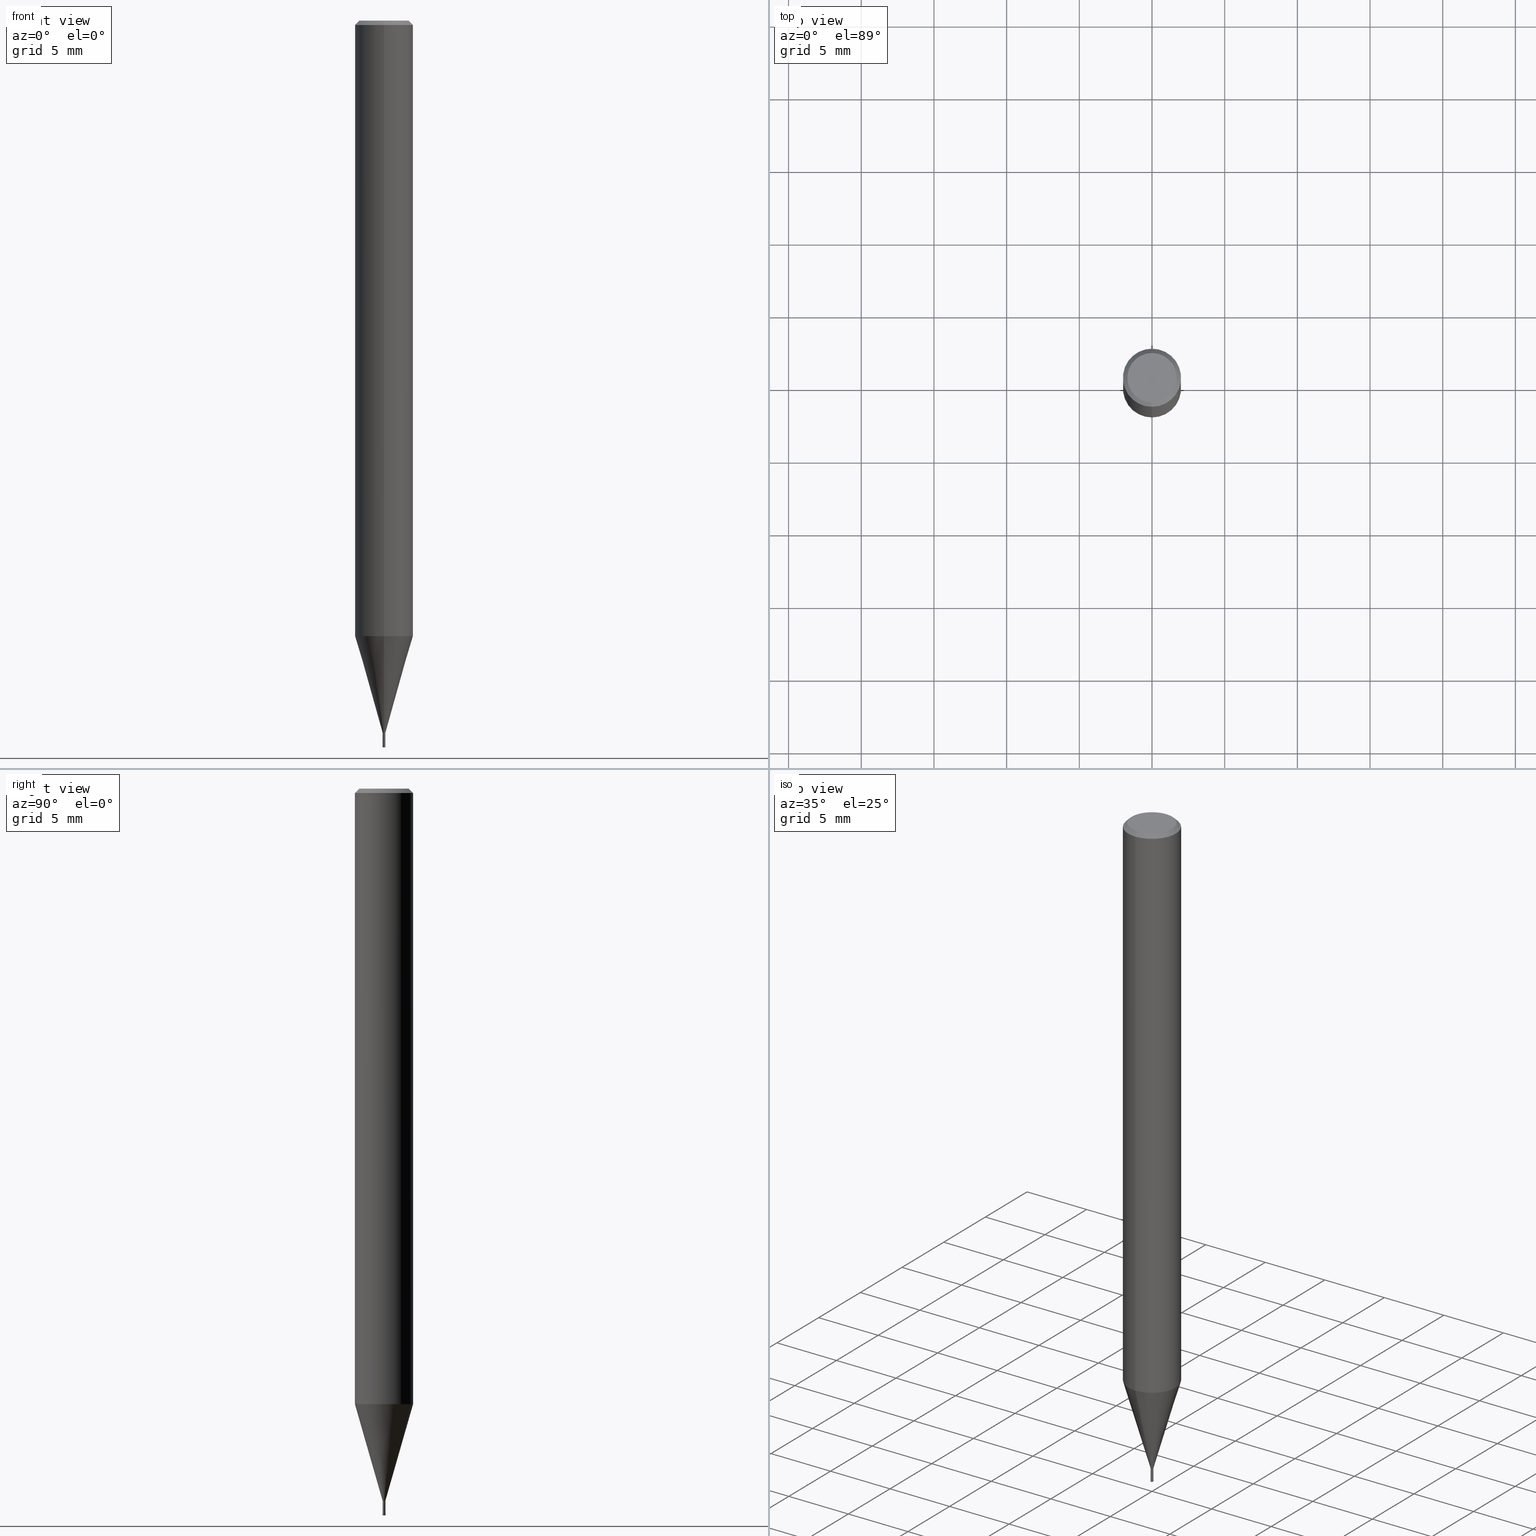
[diagram: canonical four-view strip — front | top / right | iso, engineering-drawing reading convention]
A machine part, canonical four-view strip (front | top / right | iso — engineering-drawing reading convention). The complete STEP part file that produces these views, byte-faithful:
ISO-10303-21;
HEADER;
FILE_DESCRIPTION(('no description'),'unknown implementation level');
FILE_NAME('HLRS4002-002-010-Huellk.stp','  ',('CIMSOURCE GmbH'),('CADClick - KiM GmbH - www.kimweb.de'),'unknown preprocess','ACIS','unknown authorization');
FILE_SCHEMA(('automotive_design'));
ENDSEC;
DATA;
#1=MECHANICAL_DESIGN_GEOMETRIC_PRESENTATION_REPRESENTATION(' ',(#14,#15,#16,#17,#18,#19,#20,#21,#22,#23,#24,#25,#26,#27,#28,#29,#30,#31,#32,#33,#34,#35,#36,#37,#38,#39,#40,#41,#42,#43,#44,#45,#46,#47,#48,#49,#50,#51,#52,#53,#54,#55,#56,#57,#58,#59,#60,#61,#62,#63,#64,#65,#66,#67,#68,#69,#70,#71,#72,#73,#74,#75,#76,#77,#78,#79,#80,#81,#82,#83,#84,#85,#86,#87,#88,#89,#90,#91,#92,#93,#94,#95,#96,#97,#98,#99,#100,#101,#102,#103,#104,#105,#106,#107,#108,#109,#110,#111,#112,#113,#114,#115,#116,#117,#118,#119,#120,#121),#10);
#2=PRODUCT_DEFINITION_CONTEXT('',#122,'design');
#3=APPLICATION_PROTOCOL_DEFINITION('INTERNATIONAL STANDARD','automotive_design',1994,#122);
#4=PRODUCT_CATEGORY_RELATIONSHIP('NONE','NONE',#123,#124);
#5=SHAPE_DEFINITION_REPRESENTATION(#125,#126);
#6=PRODUCT_DEFINITION_CONTEXT('',#127,'design');
#7=APPLICATION_PROTOCOL_DEFINITION('INTERNATIONAL STANDARD','automotive_design',1994,#127);
#8=PRODUCT_CATEGORY_RELATIONSHIP('NONE','NONE',#128,#129);
#9=SHAPE_DEFINITION_REPRESENTATION(#130,#131);
#10= (GEOMETRIC_REPRESENTATION_CONTEXT(3)GLOBAL_UNCERTAINTY_ASSIGNED_CONTEXT((#134))GLOBAL_UNIT_ASSIGNED_CONTEXT((#136,#137,#138))REPRESENTATION_CONTEXT('NONE','WORKSPACE'));
#14=STYLED_ITEM('',(#140),#141);
#15=STYLED_ITEM('',(#142),#143);
#16=STYLED_ITEM('',(#144),#145);
#17=STYLED_ITEM('',(#146),#147);
#18=STYLED_ITEM('',(#148),#149);
#19=STYLED_ITEM('',(#150),#151);
#20=STYLED_ITEM('',(#152),#153);
#21=STYLED_ITEM('',(#154),#155);
#22=STYLED_ITEM('',(#156),#157);
#23=STYLED_ITEM('',(#158),#159);
#24=STYLED_ITEM('',(#160),#161);
#25=STYLED_ITEM('',(#162),#163);
#26=STYLED_ITEM('',(#164),#165);
#27=STYLED_ITEM('',(#166),#167);
#28=STYLED_ITEM('',(#168),#169);
#29=STYLED_ITEM('',(#170),#171);
#30=STYLED_ITEM('',(#172),#173);
#31=STYLED_ITEM('',(#174),#175);
#32=STYLED_ITEM('',(#176),#177);
#33=STYLED_ITEM('',(#178),#179);
#34=STYLED_ITEM('',(#180),#181);
#35=STYLED_ITEM('',(#182),#183);
#36=STYLED_ITEM('',(#184),#185);
#37=STYLED_ITEM('',(#186),#187);
#38=STYLED_ITEM('',(#188),#189);
#39=STYLED_ITEM('',(#190),#191);
#40=STYLED_ITEM('',(#192),#193);
#41=STYLED_ITEM('',(#194),#195);
#42=STYLED_ITEM('',(#196),#197);
#43=STYLED_ITEM('',(#198),#199);
#44=STYLED_ITEM('',(#200),#201);
#45=STYLED_ITEM('',(#202),#203);
#46=STYLED_ITEM('',(#204),#205);
#47=STYLED_ITEM('',(#206),#207);
#48=STYLED_ITEM('',(#208),#209);
#49=STYLED_ITEM('',(#210),#211);
#50=STYLED_ITEM('',(#212),#213);
#51=STYLED_ITEM('',(#214),#215);
#52=STYLED_ITEM('',(#216),#217);
#53=STYLED_ITEM('',(#218),#219);
#54=STYLED_ITEM('',(#220),#221);
#55=STYLED_ITEM('',(#222),#223);
#56=STYLED_ITEM('',(#224),#225);
#57=STYLED_ITEM('',(#226),#227);
#58=STYLED_ITEM('',(#228),#229);
#59=STYLED_ITEM('',(#230),#231);
#60=STYLED_ITEM('',(#232),#233);
#61=STYLED_ITEM('',(#234),#235);
#62=STYLED_ITEM('',(#236),#237);
#63=STYLED_ITEM('',(#238),#239);
#64=STYLED_ITEM('',(#240),#241);
#65=STYLED_ITEM('',(#242),#243);
#66=STYLED_ITEM('',(#244),#245);
#67=STYLED_ITEM('',(#246),#247);
#68=STYLED_ITEM('',(#248),#249);
#69=STYLED_ITEM('',(#250),#251);
#70=STYLED_ITEM('',(#252),#253);
#71=STYLED_ITEM('',(#254),#255);
#72=STYLED_ITEM('',(#256),#257);
#73=STYLED_ITEM('',(#258),#259);
#74=STYLED_ITEM('',(#260),#261);
#75=STYLED_ITEM('',(#262),#263);
#76=STYLED_ITEM('',(#264),#265);
#77=STYLED_ITEM('',(#266),#267);
#78=STYLED_ITEM('',(#268),#269);
#79=STYLED_ITEM('',(#270),#271);
#80=STYLED_ITEM('',(#272),#273);
#81=STYLED_ITEM('',(#274),#275);
#82=STYLED_ITEM('',(#276),#277);
#83=STYLED_ITEM('',(#278),#279);
#84=STYLED_ITEM('',(#280),#281);
#85=STYLED_ITEM('',(#282),#283);
#86=STYLED_ITEM('',(#284),#285);
#87=STYLED_ITEM('',(#286),#287);
#88=STYLED_ITEM('',(#288),#289);
#89=STYLED_ITEM('',(#290),#291);
#90=STYLED_ITEM('',(#292),#293);
#91=STYLED_ITEM('',(#294),#295);
#92=STYLED_ITEM('',(#296),#297);
#93=STYLED_ITEM('',(#298),#299);
#94=STYLED_ITEM('',(#300),#301);
#95=STYLED_ITEM('',(#302),#303);
#96=STYLED_ITEM('',(#304),#305);
#97=STYLED_ITEM('',(#306),#307);
#98=STYLED_ITEM('',(#308),#309);
#99=STYLED_ITEM('',(#310),#311);
#100=STYLED_ITEM('',(#312),#313);
#101=STYLED_ITEM('',(#314),#315);
#102=STYLED_ITEM('',(#316),#317);
#103=STYLED_ITEM('',(#318),#319);
#104=STYLED_ITEM('',(#320),#321);
#105=STYLED_ITEM('',(#322),#323);
#106=STYLED_ITEM('',(#324),#325);
#107=STYLED_ITEM('',(#326),#327);
#108=STYLED_ITEM('',(#328),#329);
#109=STYLED_ITEM('',(#330),#331);
#110=STYLED_ITEM('',(#332),#333);
#111=STYLED_ITEM('',(#334),#335);
#112=STYLED_ITEM('',(#336),#337);
#113=STYLED_ITEM('',(#338),#339);
#114=STYLED_ITEM('',(#340),#341);
#115=STYLED_ITEM('',(#342),#343);
#116=STYLED_ITEM('',(#344),#345);
#117=STYLED_ITEM('',(#346),#347);
#118=STYLED_ITEM('',(#348),#349);
#119=STYLED_ITEM('',(#350),#351);
#120=STYLED_ITEM('',(#352),#353);
#121=STYLED_ITEM('',(#354),#355);
#122=APPLICATION_CONTEXT(' ');
#123=PRODUCT_CATEGORY('part','NONE');
#124=PRODUCT_RELATED_PRODUCT_CATEGORY('detail',' ',(#356));
#125=PRODUCT_DEFINITION_SHAPE('NONE','NONE',#357);
#126=ADVANCED_BREP_SHAPE_REPRESENTATION('1',(#169,#358),#10);
#127=APPLICATION_CONTEXT(' ');
#128=PRODUCT_CATEGORY('part','NONE');
#129=PRODUCT_RELATED_PRODUCT_CATEGORY('detail',' ',(#359));
#130=PRODUCT_DEFINITION_SHAPE('NONE','NONE',#360);
#131=ADVANCED_BREP_SHAPE_REPRESENTATION('2',(#159,#361),#10);
#134=UNCERTAINTY_MEASURE_WITH_UNIT(LENGTH_MEASURE(1.0E-006),#136,'','');
#136= (CONVERSION_BASED_UNIT('MILLIMETRE',#364)LENGTH_UNIT()NAMED_UNIT(#367));
#137= (NAMED_UNIT(#369)PLANE_ANGLE_UNIT()SI_UNIT($,.RADIAN.));
#138= (NAMED_UNIT(#369)SOLID_ANGLE_UNIT()SI_UNIT($,.STERADIAN.));
#140=PRESENTATION_STYLE_ASSIGNMENT((#375));
#141=EDGE_CURVE('',#259,#247,#376,.T.);
#142=PRESENTATION_STYLE_ASSIGNMENT((#377));
#143=VERTEX_POINT('',#378);
#144=PRESENTATION_STYLE_ASSIGNMENT((#379));
#145=ADVANCED_FACE('',(#380),#381,.F.);
#146=PRESENTATION_STYLE_ASSIGNMENT((#382));
#147=EDGE_CURVE('',#333,#279,#383,.T.);
#148=PRESENTATION_STYLE_ASSIGNMENT((#384));
#149=EDGE_CURVE('',#143,#171,#385,.T.);
#150=PRESENTATION_STYLE_ASSIGNMENT((#386));
#151=VERTEX_POINT('',#387);
#152=PRESENTATION_STYLE_ASSIGNMENT((#388));
#153=VERTEX_POINT('',#389);
#154=PRESENTATION_STYLE_ASSIGNMENT((#390));
#155=VERTEX_POINT('',#391);
#156=PRESENTATION_STYLE_ASSIGNMENT((#392));
#157=EDGE_CURVE('',#279,#333,#393,.T.);
#158=PRESENTATION_STYLE_ASSIGNMENT((#394));
#159=MANIFOLD_SOLID_BREP('2',#395);
#160=PRESENTATION_STYLE_ASSIGNMENT((#396));
#161=EDGE_CURVE('',#241,#277,#397,.T.);
#162=PRESENTATION_STYLE_ASSIGNMENT((#398));
#163=ADVANCED_FACE('',(#399,#400),#401,.T.);
#164=PRESENTATION_STYLE_ASSIGNMENT((#402));
#165=EDGE_CURVE('',#155,#171,#403,.T.);
#166=PRESENTATION_STYLE_ASSIGNMENT((#404));
#167=EDGE_CURVE('',#353,#189,#405,.T.);
#168=PRESENTATION_STYLE_ASSIGNMENT((#406));
#169=MANIFOLD_SOLID_BREP('1',#407);
#170=PRESENTATION_STYLE_ASSIGNMENT((#408));
#171=VERTEX_POINT('',#409);
#172=PRESENTATION_STYLE_ASSIGNMENT((#410));
#173=EDGE_CURVE('',#275,#293,#411,.T.);
#174=PRESENTATION_STYLE_ASSIGNMENT((#412));
#175=EDGE_CURVE('',#243,#303,#413,.T.);
#176=PRESENTATION_STYLE_ASSIGNMENT((#414));
#177=EDGE_CURVE('',#245,#283,#415,.T.);
#178=PRESENTATION_STYLE_ASSIGNMENT((#416));
#179=ADVANCED_FACE('',(#417),#418,.T.);
#180=PRESENTATION_STYLE_ASSIGNMENT((#419));
#181=VERTEX_POINT('',#420);
#182=PRESENTATION_STYLE_ASSIGNMENT((#421));
#183=VERTEX_POINT('',#422);
#184=PRESENTATION_STYLE_ASSIGNMENT((#423));
#185=ADVANCED_FACE('',(#424,#425),#426,.T.);
#186=PRESENTATION_STYLE_ASSIGNMENT((#427));
#187=EDGE_CURVE('',#189,#305,#428,.T.);
#188=PRESENTATION_STYLE_ASSIGNMENT((#429));
#189=VERTEX_POINT('',#430);
#190=PRESENTATION_STYLE_ASSIGNMENT((#431));
#191=ADVANCED_FACE('',(#432),#433,.T.);
#192=PRESENTATION_STYLE_ASSIGNMENT((#434));
#193=ADVANCED_FACE('',(#435),#436,.T.);
#194=PRESENTATION_STYLE_ASSIGNMENT((#437));
#195=ADVANCED_FACE('',(#438),#439,.T.);
#196=PRESENTATION_STYLE_ASSIGNMENT((#440));
#197=EDGE_CURVE('',#275,#283,#441,.T.);
#198=PRESENTATION_STYLE_ASSIGNMENT((#442));
#199=EDGE_CURVE('',#155,#227,#443,.T.);
#200=PRESENTATION_STYLE_ASSIGNMENT((#444));
#201=EDGE_CURVE('',#247,#259,#445,.T.);
#202=PRESENTATION_STYLE_ASSIGNMENT((#446));
#203=EDGE_CURVE('',#237,#219,#447,.T.);
#204=PRESENTATION_STYLE_ASSIGNMENT((#448));
#205=EDGE_CURVE('',#277,#241,#449,.T.);
#206=PRESENTATION_STYLE_ASSIGNMENT((#450));
#207=VERTEX_POINT('',#451);
#208=PRESENTATION_STYLE_ASSIGNMENT((#452));
#209=EDGE_CURVE('',#245,#293,#453,.T.);
#210=PRESENTATION_STYLE_ASSIGNMENT((#454));
#211=EDGE_CURVE('',#151,#181,#455,.T.);
#212=PRESENTATION_STYLE_ASSIGNMENT((#456));
#213=EDGE_CURVE('',#229,#183,#457,.T.);
#214=PRESENTATION_STYLE_ASSIGNMENT((#458));
#215=ADVANCED_FACE('',(#459),#460,.T.);
#216=PRESENTATION_STYLE_ASSIGNMENT((#461));
#217=EDGE_CURVE('',#219,#237,#462,.T.);
#218=PRESENTATION_STYLE_ASSIGNMENT((#463));
#219=VERTEX_POINT('',#464);
#220=PRESENTATION_STYLE_ASSIGNMENT((#465));
#221=VERTEX_POINT('',#466);
#222=PRESENTATION_STYLE_ASSIGNMENT((#467));
#223=EDGE_CURVE('',#279,#189,#468,.T.);
#224=PRESENTATION_STYLE_ASSIGNMENT((#469));
#225=ADVANCED_FACE('',(#470),#471,.T.);
#226=PRESENTATION_STYLE_ASSIGNMENT((#472));
#227=VERTEX_POINT('',#473);
#228=PRESENTATION_STYLE_ASSIGNMENT((#474));
#229=VERTEX_POINT('',#475);
#230=PRESENTATION_STYLE_ASSIGNMENT((#476));
#231=VERTEX_POINT('',#477);
#232=PRESENTATION_STYLE_ASSIGNMENT((#478));
#233=EDGE_CURVE('',#151,#207,#479,.T.);
#234=PRESENTATION_STYLE_ASSIGNMENT((#480));
#235=EDGE_CURVE('',#181,#153,#481,.T.);
#236=PRESENTATION_STYLE_ASSIGNMENT((#482));
#237=VERTEX_POINT('',#483);
#238=PRESENTATION_STYLE_ASSIGNMENT((#484));
#239=EDGE_CURVE('',#293,#275,#485,.T.);
#240=PRESENTATION_STYLE_ASSIGNMENT((#486));
#241=VERTEX_POINT('',#487);
#242=PRESENTATION_STYLE_ASSIGNMENT((#488));
#243=VERTEX_POINT('',#489);
#244=PRESENTATION_STYLE_ASSIGNMENT((#490));
#245=VERTEX_POINT('',#491);
#246=PRESENTATION_STYLE_ASSIGNMENT((#492));
#247=VERTEX_POINT('',#493);
#248=PRESENTATION_STYLE_ASSIGNMENT((#494));
#249=EDGE_CURVE('',#283,#245,#495,.T.);
#250=PRESENTATION_STYLE_ASSIGNMENT((#496));
#251=EDGE_CURVE('',#303,#229,#497,.T.);
#252=PRESENTATION_STYLE_ASSIGNMENT((#498));
#253=ADVANCED_FACE('',(#499),#500,.T.);
#254=PRESENTATION_STYLE_ASSIGNMENT((#501));
#255=ADVANCED_FACE('',(#502),#503,.T.);
#256=PRESENTATION_STYLE_ASSIGNMENT((#504));
#257=EDGE_CURVE('',#275,#241,#505,.T.);
#258=PRESENTATION_STYLE_ASSIGNMENT((#506));
#259=VERTEX_POINT('',#507);
#260=PRESENTATION_STYLE_ASSIGNMENT((#508));
#261=ADVANCED_FACE('',(#509),#510,.T.);
#262=PRESENTATION_STYLE_ASSIGNMENT((#511));
#263=EDGE_CURVE('',#227,#259,#512,.T.);
#264=PRESENTATION_STYLE_ASSIGNMENT((#513));
#265=EDGE_CURVE('',#143,#227,#514,.T.);
#266=PRESENTATION_STYLE_ASSIGNMENT((#515));
#267=ADVANCED_FACE('',(#516),#517,.T.);
#268=PRESENTATION_STYLE_ASSIGNMENT((#518));
#269=ADVANCED_FACE('',(#519),#520,.T.);
#270=PRESENTATION_STYLE_ASSIGNMENT((#521));
#271=ADVANCED_FACE('',(#522),#523,.T.);
#272=PRESENTATION_STYLE_ASSIGNMENT((#524));
#273=EDGE_CURVE('',#303,#243,#525,.T.);
#274=PRESENTATION_STYLE_ASSIGNMENT((#526));
#275=VERTEX_POINT('',#527);
#276=PRESENTATION_STYLE_ASSIGNMENT((#528));
#277=VERTEX_POINT('',#529);
#278=PRESENTATION_STYLE_ASSIGNMENT((#530));
#279=VERTEX_POINT('',#531);
#280=PRESENTATION_STYLE_ASSIGNMENT((#532));
#281=ADVANCED_FACE('',(#533),#534,.T.);
#282=PRESENTATION_STYLE_ASSIGNMENT((#535));
#283=VERTEX_POINT('',#536);
#284=PRESENTATION_STYLE_ASSIGNMENT((#537));
#285=EDGE_CURVE('',#219,#183,#538,.T.);
#286=PRESENTATION_STYLE_ASSIGNMENT((#539));
#287=EDGE_CURVE('',#221,#231,#540,.T.);
#288=PRESENTATION_STYLE_ASSIGNMENT((#541));
#289=ADVANCED_FACE('',(#542),#543,.F.);
#290=PRESENTATION_STYLE_ASSIGNMENT((#544));
#291=EDGE_CURVE('',#277,#293,#545,.T.);
#292=PRESENTATION_STYLE_ASSIGNMENT((#546));
#293=VERTEX_POINT('',#547);
#294=PRESENTATION_STYLE_ASSIGNMENT((#548));
#295=EDGE_CURVE('',#153,#181,#549,.T.);
#296=PRESENTATION_STYLE_ASSIGNMENT((#550));
#297=ADVANCED_FACE('',(#551,#552),#553,.T.);
#298=PRESENTATION_STYLE_ASSIGNMENT((#554));
#299=EDGE_CURVE('',#305,#347,#555,.T.);
#300=PRESENTATION_STYLE_ASSIGNMENT((#556));
#301=EDGE_CURVE('',#183,#229,#557,.T.);
#302=PRESENTATION_STYLE_ASSIGNMENT((#558));
#303=VERTEX_POINT('',#559);
#304=PRESENTATION_STYLE_ASSIGNMENT((#560));
#305=VERTEX_POINT('',#561);
#306=PRESENTATION_STYLE_ASSIGNMENT((#562));
#307=ADVANCED_FACE('',(#563),#564,.T.);
#308=PRESENTATION_STYLE_ASSIGNMENT((#565));
#309=ADVANCED_FACE('',(#566),#567,.T.);
#310=PRESENTATION_STYLE_ASSIGNMENT((#568));
#311=EDGE_CURVE('',#229,#237,#569,.T.);
#312=PRESENTATION_STYLE_ASSIGNMENT((#570));
#313=EDGE_CURVE('',#221,#151,#571,.T.);
#314=PRESENTATION_STYLE_ASSIGNMENT((#572));
#315=EDGE_CURVE('',#231,#221,#573,.T.);
#316=PRESENTATION_STYLE_ASSIGNMENT((#574));
#317=EDGE_CURVE('',#183,#243,#575,.T.);
#318=PRESENTATION_STYLE_ASSIGNMENT((#576));
#319=ADVANCED_FACE('',(#577,#578),#579,.T.);
#320=PRESENTATION_STYLE_ASSIGNMENT((#580));
#321=EDGE_CURVE('',#171,#143,#581,.T.);
#322=PRESENTATION_STYLE_ASSIGNMENT((#582));
#323=EDGE_CURVE('',#207,#151,#583,.T.);
#324=PRESENTATION_STYLE_ASSIGNMENT((#584));
#325=EDGE_CURVE('',#353,#333,#585,.T.);
#326=PRESENTATION_STYLE_ASSIGNMENT((#586));
#327=EDGE_CURVE('',#347,#353,#587,.T.);
#328=PRESENTATION_STYLE_ASSIGNMENT((#588));
#329=EDGE_CURVE('',#153,#207,#589,.T.);
#330=PRESENTATION_STYLE_ASSIGNMENT((#590));
#331=EDGE_CURVE('',#227,#155,#591,.T.);
#332=PRESENTATION_STYLE_ASSIGNMENT((#592));
#333=VERTEX_POINT('',#593);
#334=PRESENTATION_STYLE_ASSIGNMENT((#594));
#335=EDGE_CURVE('',#347,#305,#595,.T.);
#336=PRESENTATION_STYLE_ASSIGNMENT((#596));
#337=ADVANCED_FACE('',(#597),#598,.F.);
#338=PRESENTATION_STYLE_ASSIGNMENT((#599));
#339=EDGE_CURVE('',#189,#353,#600,.T.);
#340=PRESENTATION_STYLE_ASSIGNMENT((#601));
#341=ADVANCED_FACE('',(#602),#603,.T.);
#342=PRESENTATION_STYLE_ASSIGNMENT((#604));
#343=ADVANCED_FACE('',(#605),#606,.T.);
#344=PRESENTATION_STYLE_ASSIGNMENT((#607));
#345=ADVANCED_FACE('',(#608),#609,.T.);
#346=PRESENTATION_STYLE_ASSIGNMENT((#610));
#347=VERTEX_POINT('',#611);
#348=PRESENTATION_STYLE_ASSIGNMENT((#612));
#349=EDGE_CURVE('',#207,#231,#613,.T.);
#350=PRESENTATION_STYLE_ASSIGNMENT((#614));
#351=EDGE_CURVE('',#247,#155,#615,.T.);
#352=PRESENTATION_STYLE_ASSIGNMENT((#616));
#353=VERTEX_POINT('',#617);
#354=PRESENTATION_STYLE_ASSIGNMENT((#618));
#355=ADVANCED_FACE('',(#619),#620,.F.);
#356=PRODUCT('1','1','PART-1-DESC',(#621));
#357=PRODUCT_DEFINITION('NONE','NONE',#622,#2);
#358=AXIS2_PLACEMENT_3D('',#623,#624,#625);
#359=PRODUCT('2','2','PART-2-DESC',(#626));
#360=PRODUCT_DEFINITION('NONE','NONE',#627,#6);
#361=AXIS2_PLACEMENT_3D('',#628,#629,#630);
#364=LENGTH_MEASURE_WITH_UNIT(LENGTH_MEASURE(1.0),#631);
#367=DIMENSIONAL_EXPONENTS(1.0,0.0,0.0,0.0,0.0,0.0,0.0);
#369=DIMENSIONAL_EXPONENTS(0.0,0.0,0.0,0.0,0.0,0.0,0.0);
#375=CURVE_STYLE('',#632,POSITIVE_LENGTH_MEASURE(1.0E-006),#633);
#376=CIRCLE('',#634,0.09245);
#377=POINT_STYLE(' ',#635,POSITIVE_LENGTH_MEASURE(1.0E-006),#636);
#378=CARTESIAN_POINT('',(0.0,1.99995,-42.338));
#379=SURFACE_STYLE_USAGE(.BOTH.,#637);
#380=FACE_OUTER_BOUND('',#638,.T.);
#381=CYLINDRICAL_SURFACE('',#639,0.045);
#382=CURVE_STYLE('',#640,POSITIVE_LENGTH_MEASURE(1.0E-006),#641);
#383=CIRCLE('',#642,2.0);
#384=CURVE_STYLE('',#643,POSITIVE_LENGTH_MEASURE(1.0E-006),#644);
#385=CIRCLE('',#645,1.99995);
#386=POINT_STYLE(' ',#646,POSITIVE_LENGTH_MEASURE(1.0E-006),#647);
#387=CARTESIAN_POINT('',(5.5107285922007E-018,-0.045,-49.88));
#388=POINT_STYLE(' ',#648,POSITIVE_LENGTH_MEASURE(1.0E-006),#649);
#389=CARTESIAN_POINT('',(0.0,0.0949,-49.87));
#390=POINT_STYLE(' ',#650,POSITIVE_LENGTH_MEASURE(1.0E-006),#651);
#391=CARTESIAN_POINT('',(1.13214857410879E-017,-0.09245,-48.99));
#392=CURVE_STYLE('',#652,POSITIVE_LENGTH_MEASURE(1.0E-006),#653);
#393=CIRCLE('',#654,2.0);
#394=SURFACE_STYLE_USAGE(.BOTH.,#655);
#395=CLOSED_SHELL('',(#145,#215,#225,#355,#289,#163,#271,#253,#297,#337));
#396=CURVE_STYLE('',#656,POSITIVE_LENGTH_MEASURE(1.0E-006),#657);
#397=CIRCLE('',#658,0.08);
#398=SURFACE_STYLE_USAGE(.BOTH.,#659);
#399=FACE_OUTER_BOUND('',#660,.T.);
#400=FACE_BOUND('',#661,.T.);
#401=PLANE('',#662);
#402=CURVE_STYLE('',#663,POSITIVE_LENGTH_MEASURE(1.0E-006),#664);
#403=LINE('',#665,#666);
#404=CURVE_STYLE('',#667,POSITIVE_LENGTH_MEASURE(1.0E-006),#668);
#405=CIRCLE('',#669,2.0);
#406=SURFACE_STYLE_USAGE(.BOTH.,#670);
#407=CLOSED_SHELL('',(#191,#309,#179,#193,#281,#341,#319,#255,#307,#195,#343,#267,#185,#261,#345,#269));
#408=POINT_STYLE(' ',#671,POSITIVE_LENGTH_MEASURE(1.0E-006),#672);
#409=CARTESIAN_POINT('',(2.44915147732706E-016,-1.99995,-42.338));
#410=CURVE_STYLE('',#673,POSITIVE_LENGTH_MEASURE(1.0E-006),#674);
#411=CIRCLE('',#675,0.1);
#412=CURVE_STYLE('',#676,POSITIVE_LENGTH_MEASURE(1.0E-006),#677);
#413=CIRCLE('',#678,0.09495);
#414=CURVE_STYLE('',#679,POSITIVE_LENGTH_MEASURE(1.0E-006),#680);
#415=CIRCLE('',#681,0.0999);
#416=SURFACE_STYLE_USAGE(.BOTH.,#682);
#417=FACE_OUTER_BOUND('',#683,.T.);
#418=CYLINDRICAL_SURFACE('',#684,0.09245);
#419=POINT_STYLE(' ',#685,POSITIVE_LENGTH_MEASURE(1.0E-006),#686);
#420=CARTESIAN_POINT('',(1.16215142977744E-017,-0.0949,-49.87));
#421=POINT_STYLE(' ',#687,POSITIVE_LENGTH_MEASURE(1.0E-006),#688);
#422=CARTESIAN_POINT('',(5.5107285922007E-018,-0.045,-49.88));
#423=SURFACE_STYLE_USAGE(.BOTH.,#689);
#424=FACE_OUTER_BOUND('',#690,.T.);
#425=FACE_BOUND('',#691,.T.);
#426=PLANE('',#692);
#427=CURVE_STYLE('',#693,POSITIVE_LENGTH_MEASURE(1.0E-006),#694);
#428=LINE('',#695,#696);
#429=POINT_STYLE(' ',#697,POSITIVE_LENGTH_MEASURE(1.0E-006),#698);
#430=CARTESIAN_POINT('',(2.44921270764475E-016,-2.0,-0.289999999999999));
#431=SURFACE_STYLE_USAGE(.BOTH.,#699);
#432=FACE_OUTER_BOUND('',#700,.T.);
#433=CYLINDRICAL_SURFACE('',#701,0.045);
#434=SURFACE_STYLE_USAGE(.BOTH.,#702);
#435=FACE_OUTER_BOUND('',#703,.T.);
#436=CONICAL_SURFACE('',#704,1.0462,0.279262361421134);
#437=SURFACE_STYLE_USAGE(.BOTH.,#705);
#438=FACE_OUTER_BOUND('',#706,.T.);
#439=CYLINDRICAL_SURFACE('',#707,2.0);
#440=CURVE_STYLE('',#708,POSITIVE_LENGTH_MEASURE(1.0E-006),#709);
#441=LINE('',#710,#711);
#442=CURVE_STYLE('',#712,POSITIVE_LENGTH_MEASURE(1.0E-006),#713);
#443=CIRCLE('',#714,0.09245);
#444=CURVE_STYLE('',#715,POSITIVE_LENGTH_MEASURE(1.0E-006),#716);
#445=CIRCLE('',#717,0.09245);
#446=CURVE_STYLE('',#718,POSITIVE_LENGTH_MEASURE(1.0E-006),#719);
#447=CIRCLE('',#720,0.045);
#448=CURVE_STYLE('',#721,POSITIVE_LENGTH_MEASURE(1.0E-006),#722);
#449=CIRCLE('',#723,0.08);
#450=POINT_STYLE(' ',#724,POSITIVE_LENGTH_MEASURE(1.0E-006),#725);
#451=CARTESIAN_POINT('',(0.0,0.045,-49.88));
#452=CURVE_STYLE('',#726,POSITIVE_LENGTH_MEASURE(1.0E-006),#727);
#453=LINE('',#728,#729);
#454=CURVE_STYLE('',#730,POSITIVE_LENGTH_MEASURE(1.0E-006),#731);
#455=LINE('',#732,#733);
#456=CURVE_STYLE('',#734,POSITIVE_LENGTH_MEASURE(1.0E-006),#735);
#457=CIRCLE('',#736,0.045);
#458=SURFACE_STYLE_USAGE(.BOTH.,#737);
#459=FACE_OUTER_BOUND('',#738,.T.);
#460=TOROIDAL_SURFACE('',#739,0.08,0.02);
#461=CURVE_STYLE('',#740,POSITIVE_LENGTH_MEASURE(1.0E-006),#741);
#462=CIRCLE('',#742,0.045);
#463=POINT_STYLE(' ',#743,POSITIVE_LENGTH_MEASURE(1.0E-006),#744);
#464=CARTESIAN_POINT('',(5.5107285922007E-018,-0.045,-49.96));
#465=POINT_STYLE(' ',#745,POSITIVE_LENGTH_MEASURE(1.0E-006),#746);
#466=CARTESIAN_POINT('',(5.5107285922007E-018,-0.045,-49.99));
#467=CURVE_STYLE('',#747,POSITIVE_LENGTH_MEASURE(1.0E-006),#748);
#468=LINE('',#749,#750);
#469=SURFACE_STYLE_USAGE(.BOTH.,#751);
#470=FACE_OUTER_BOUND('',#752,.T.);
#471=CONICAL_SURFACE('',#753,0.09995,0.000999999666666895);
#472=POINT_STYLE(' ',#754,POSITIVE_LENGTH_MEASURE(1.0E-006),#755);
#473=CARTESIAN_POINT('',(0.0,0.09245,-48.99));
#474=POINT_STYLE(' ',#756,POSITIVE_LENGTH_MEASURE(1.0E-006),#757);
#475=CARTESIAN_POINT('',(0.0,0.045,-49.88));
#476=POINT_STYLE(' ',#758,POSITIVE_LENGTH_MEASURE(1.0E-006),#759);
#477=CARTESIAN_POINT('',(0.0,0.045,-49.99));
#478=CURVE_STYLE('',#760,POSITIVE_LENGTH_MEASURE(1.0E-006),#761);
#479=CIRCLE('',#762,0.045);
#480=CURVE_STYLE('',#763,POSITIVE_LENGTH_MEASURE(1.0E-006),#764);
#481=CIRCLE('',#765,0.0949);
#482=POINT_STYLE(' ',#766,POSITIVE_LENGTH_MEASURE(1.0E-006),#767);
#483=CARTESIAN_POINT('',(0.0,0.045,-49.96));
#484=CURVE_STYLE('',#768,POSITIVE_LENGTH_MEASURE(1.0E-006),#769);
#485=CIRCLE('',#770,0.1);
#486=POINT_STYLE(' ',#771,POSITIVE_LENGTH_MEASURE(1.0E-006),#772);
#487=CARTESIAN_POINT('',(9.79685083057902E-018,-0.08,-49.99));
#488=POINT_STYLE(' ',#773,POSITIVE_LENGTH_MEASURE(1.0E-006),#774);
#489=CARTESIAN_POINT('',(1.16276373295435E-017,-0.09495,-49.87));
#490=POINT_STYLE(' ',#775,POSITIVE_LENGTH_MEASURE(1.0E-006),#776);
#491=CARTESIAN_POINT('',(0.0,0.0999,-49.87));
#492=POINT_STYLE(' ',#777,POSITIVE_LENGTH_MEASURE(1.0E-006),#778);
#493=CARTESIAN_POINT('',(1.13214857410879E-017,-0.09245,-49.87));
#494=CURVE_STYLE('',#779,POSITIVE_LENGTH_MEASURE(1.0E-006),#780);
#495=CIRCLE('',#781,0.0999);
#496=CURVE_STYLE('',#782,POSITIVE_LENGTH_MEASURE(1.0E-006),#783);
#497=LINE('',#784,#785);
#498=SURFACE_STYLE_USAGE(.BOTH.,#786);
#499=FACE_OUTER_BOUND('',#787,.T.);
#500=TOROIDAL_SURFACE('',#788,0.08,0.02);
#501=SURFACE_STYLE_USAGE(.BOTH.,#789);
#502=FACE_OUTER_BOUND('',#790,.T.);
#503=PLANE('',#791);
#504=CURVE_STYLE('',#792,POSITIVE_LENGTH_MEASURE(1.0E-006),#793);
#505=CIRCLE('',#794,0.02);
#506=POINT_STYLE(' ',#795,POSITIVE_LENGTH_MEASURE(1.0E-006),#796);
#507=CARTESIAN_POINT('',(0.0,0.09245,-49.87));
#508=SURFACE_STYLE_USAGE(.BOTH.,#797);
#509=FACE_OUTER_BOUND('',#798,.T.);
#510=CONICAL_SURFACE('',#799,0.069975,1.37320827416588);
#511=CURVE_STYLE('',#800,POSITIVE_LENGTH_MEASURE(1.0E-006),#801);
#512=LINE('',#802,#803);
#513=CURVE_STYLE('',#804,POSITIVE_LENGTH_MEASURE(1.0E-006),#805);
#514=LINE('',#806,#807);
#515=SURFACE_STYLE_USAGE(.BOTH.,#808);
#516=FACE_OUTER_BOUND('',#809,.T.);
#517=CYLINDRICAL_SURFACE('',#810,0.09245);
#518=SURFACE_STYLE_USAGE(.BOTH.,#811);
#519=FACE_OUTER_BOUND('',#812,.T.);
#520=PLANE('',#813);
#521=SURFACE_STYLE_USAGE(.BOTH.,#814);
#522=FACE_OUTER_BOUND('',#815,.T.);
#523=CONICAL_SURFACE('',#816,0.09995,0.000999999666666895);
#524=CURVE_STYLE('',#817,POSITIVE_LENGTH_MEASURE(1.0E-006),#818);
#525=CIRCLE('',#819,0.09495);
#526=POINT_STYLE(' ',#820,POSITIVE_LENGTH_MEASURE(1.0E-006),#821);
#527=CARTESIAN_POINT('',(1.22460635382238E-017,-0.1,-49.97));
#528=POINT_STYLE(' ',#822,POSITIVE_LENGTH_MEASURE(1.0E-006),#823);
#529=CARTESIAN_POINT('',(0.0,0.08,-49.99));
#530=POINT_STYLE(' ',#824,POSITIVE_LENGTH_MEASURE(1.0E-006),#825);
#531=CARTESIAN_POINT('',(2.44921270764475E-016,-2.0,-42.338));
#532=SURFACE_STYLE_USAGE(.BOTH.,#826);
#533=FACE_OUTER_BOUND('',#827,.T.);
#534=CYLINDRICAL_SURFACE('',#828,2.0);
#535=POINT_STYLE(' ',#829,POSITIVE_LENGTH_MEASURE(1.0E-006),#830);
#536=CARTESIAN_POINT('',(1.22338174746856E-017,-0.0999,-49.87));
#537=CURVE_STYLE('',#831,POSITIVE_LENGTH_MEASURE(1.0E-006),#832);
#538=LINE('',#833,#834);
#539=CURVE_STYLE('',#835,POSITIVE_LENGTH_MEASURE(1.0E-006),#836);
#540=CIRCLE('',#837,0.045);
#541=SURFACE_STYLE_USAGE(.BOTH.,#838);
#542=FACE_OUTER_BOUND('',#839,.T.);
#543=CONICAL_SURFACE('',#840,0.06995,1.37301541050937);
#544=CURVE_STYLE('',#841,POSITIVE_LENGTH_MEASURE(1.0E-006),#842);
#545=CIRCLE('',#843,0.02);
#546=POINT_STYLE(' ',#844,POSITIVE_LENGTH_MEASURE(1.0E-006),#845);
#547=CARTESIAN_POINT('',(0.0,0.1,-49.97));
#548=CURVE_STYLE('',#846,POSITIVE_LENGTH_MEASURE(1.0E-006),#847);
#549=CIRCLE('',#848,0.0949);
#550=SURFACE_STYLE_USAGE(.BOTH.,#849);
#551=FACE_BOUND('',#850,.T.);
#552=FACE_OUTER_BOUND('',#851,.T.);
#553=PLANE('',#852);
#554=CURVE_STYLE('',#853,POSITIVE_LENGTH_MEASURE(1.0E-006),#854);
#555=CIRCLE('',#855,1.7);
#556=CURVE_STYLE('',#856,POSITIVE_LENGTH_MEASURE(1.0E-006),#857);
#557=CIRCLE('',#858,0.045);
#558=POINT_STYLE(' ',#859,POSITIVE_LENGTH_MEASURE(1.0E-006),#860);
#559=CARTESIAN_POINT('',(0.0,0.09495,-49.87));
#560=POINT_STYLE(' ',#861,POSITIVE_LENGTH_MEASURE(1.0E-006),#862);
#561=CARTESIAN_POINT('',(2.08183080149804E-016,-1.7,0.00999999999999801));
#562=SURFACE_STYLE_USAGE(.BOTH.,#863);
#563=FACE_OUTER_BOUND('',#864,.T.);
#564=CONICAL_SURFACE('',#865,1.85,0.785398163397453);
#565=SURFACE_STYLE_USAGE(.BOTH.,#866);
#566=FACE_OUTER_BOUND('',#867,.T.);
#567=CONICAL_SURFACE('',#868,0.069975,1.37320827416588);
#568=CURVE_STYLE('',#869,POSITIVE_LENGTH_MEASURE(1.0E-006),#870);
#569=LINE('',#871,#872);
#570=CURVE_STYLE('',#873,POSITIVE_LENGTH_MEASURE(1.0E-006),#874);
#571=LINE('',#875,#876);
#572=CURVE_STYLE('',#877,POSITIVE_LENGTH_MEASURE(1.0E-006),#878);
#573=CIRCLE('',#879,0.045);
#574=CURVE_STYLE('',#880,POSITIVE_LENGTH_MEASURE(1.0E-006),#881);
#575=LINE('',#882,#883);
#576=SURFACE_STYLE_USAGE(.BOTH.,#884);
#577=FACE_OUTER_BOUND('',#885,.T.);
#578=FACE_BOUND('',#886,.T.);
#579=PLANE('',#887);
#580=CURVE_STYLE('',#888,POSITIVE_LENGTH_MEASURE(1.0E-006),#889);
#581=CIRCLE('',#890,1.99995);
#582=CURVE_STYLE('',#891,POSITIVE_LENGTH_MEASURE(1.0E-006),#892);
#583=CIRCLE('',#893,0.045);
#584=CURVE_STYLE('',#894,POSITIVE_LENGTH_MEASURE(1.0E-006),#895);
#585=LINE('',#896,#897);
#586=CURVE_STYLE('',#898,POSITIVE_LENGTH_MEASURE(1.0E-006),#899);
#587=LINE('',#900,#901);
#588=CURVE_STYLE('',#902,POSITIVE_LENGTH_MEASURE(1.0E-006),#903);
#589=LINE('',#904,#905);
#590=CURVE_STYLE('',#906,POSITIVE_LENGTH_MEASURE(1.0E-006),#907);
#591=CIRCLE('',#908,0.09245);
#592=POINT_STYLE(' ',#909,POSITIVE_LENGTH_MEASURE(1.0E-006),#910);
#593=CARTESIAN_POINT('',(0.0,2.0,-42.338));
#594=CURVE_STYLE('',#911,POSITIVE_LENGTH_MEASURE(1.0E-006),#912);
#595=CIRCLE('',#913,1.7);
#596=SURFACE_STYLE_USAGE(.BOTH.,#914);
#597=FACE_OUTER_BOUND('',#915,.T.);
#598=CYLINDRICAL_SURFACE('',#916,0.045);
#599=CURVE_STYLE('',#917,POSITIVE_LENGTH_MEASURE(1.0E-006),#918);
#600=CIRCLE('',#919,2.0);
#601=SURFACE_STYLE_USAGE(.BOTH.,#920);
#602=FACE_OUTER_BOUND('',#921,.T.);
#603=CONICAL_SURFACE('',#922,1.85,0.785398163397453);
#604=SURFACE_STYLE_USAGE(.BOTH.,#923);
#605=FACE_OUTER_BOUND('',#924,.T.);
#606=CONICAL_SURFACE('',#925,1.0462,0.279262361421134);
#607=SURFACE_STYLE_USAGE(.BOTH.,#926);
#608=FACE_OUTER_BOUND('',#927,.T.);
#609=CYLINDRICAL_SURFACE('',#928,0.045);
#610=POINT_STYLE(' ',#929,POSITIVE_LENGTH_MEASURE(1.0E-006),#930);
#611=CARTESIAN_POINT('',(0.0,1.7,0.00999999999999801));
#612=CURVE_STYLE('',#931,POSITIVE_LENGTH_MEASURE(1.0E-006),#932);
#613=LINE('',#933,#934);
#614=CURVE_STYLE('',#935,POSITIVE_LENGTH_MEASURE(1.0E-006),#936);
#615=LINE('',#937,#938);
#616=POINT_STYLE(' ',#939,POSITIVE_LENGTH_MEASURE(1.0E-006),#940);
#617=CARTESIAN_POINT('',(0.0,2.0,-0.289999999999999));
#618=SURFACE_STYLE_USAGE(.BOTH.,#941);
#619=FACE_OUTER_BOUND('',#942,.T.);
#620=CONICAL_SURFACE('',#943,0.06995,1.37301541050937);
#621=PRODUCT_CONTEXT('',#122,'mechanical');
#622=PRODUCT_DEFINITION_FORMATION_WITH_SPECIFIED_SOURCE(' ','NONE',#356,.NOT_KNOWN.);
#623=CARTESIAN_POINT('',(0.0,0.0,0.0));
#624=DIRECTION('',(0.0,0.0,1.0));
#625=DIRECTION('',(1.0,0.0,0.0));
#626=PRODUCT_CONTEXT('',#127,'mechanical');
#627=PRODUCT_DEFINITION_FORMATION_WITH_SPECIFIED_SOURCE(' ','NONE',#359,.NOT_KNOWN.);
#628=CARTESIAN_POINT('',(0.0,0.0,0.0));
#629=DIRECTION('',(0.0,0.0,1.0));
#630=DIRECTION('',(1.0,0.0,0.0));
#631= (NAMED_UNIT(#367)LENGTH_UNIT()SI_UNIT(.MILLI.,.METRE.));
#632=DRAUGHTING_PRE_DEFINED_CURVE_FONT('continuous');
#633=COLOUR_RGB('',0.498039215803146,0.498039215803146,0.498039215803146);
#634=AXIS2_PLACEMENT_3D('',#945,#946,#947);
#635=PRE_DEFINED_MARKER('');
#636=COLOUR_RGB('',0.498039215803146,0.498039215803146,0.498039215803146);
#637=SURFACE_SIDE_STYLE('',(#948));
#638=EDGE_LOOP('',(#949,#950,#951,#952));
#639=AXIS2_PLACEMENT_3D('',#953,#954,#955);
#640=DRAUGHTING_PRE_DEFINED_CURVE_FONT('continuous');
#641=COLOUR_RGB('',0.498039215803146,0.498039215803146,0.498039215803146);
#642=AXIS2_PLACEMENT_3D('',#956,#957,#958);
#643=DRAUGHTING_PRE_DEFINED_CURVE_FONT('continuous');
#644=COLOUR_RGB('',0.498039215803146,0.498039215803146,0.498039215803146);
#645=AXIS2_PLACEMENT_3D('',#959,#960,#961);
#646=PRE_DEFINED_MARKER('');
#647=COLOUR_RGB('',0.800000011920929,0.800000011920929,0.800000011920929);
#648=PRE_DEFINED_MARKER('');
#649=COLOUR_RGB('',0.800000011920929,0.800000011920929,0.800000011920929);
#650=PRE_DEFINED_MARKER('');
#651=COLOUR_RGB('',0.498039215803146,0.498039215803146,0.498039215803146);
#652=DRAUGHTING_PRE_DEFINED_CURVE_FONT('continuous');
#653=COLOUR_RGB('',0.498039215803146,0.498039215803146,0.498039215803146);
#654=AXIS2_PLACEMENT_3D('',#962,#963,#964);
#655=SURFACE_SIDE_STYLE('',(#965));
#656=DRAUGHTING_PRE_DEFINED_CURVE_FONT('continuous');
#657=COLOUR_RGB('',0.800000011920929,0.800000011920929,0.800000011920929);
#658=AXIS2_PLACEMENT_3D('',#966,#967,#968);
#659=SURFACE_SIDE_STYLE('',(#969));
#660=EDGE_LOOP('',(#970,#971));
#661=EDGE_LOOP('',(#972,#973));
#662=AXIS2_PLACEMENT_3D('',#974,#975,#976);
#663=DRAUGHTING_PRE_DEFINED_CURVE_FONT('continuous');
#664=COLOUR_RGB('',0.498039215803146,0.498039215803146,0.498039215803146);
#665=CARTESIAN_POINT('',(1.28118316736897E-016,-1.0462,-45.664));
#666=VECTOR('',#977,1.0);
#667=DRAUGHTING_PRE_DEFINED_CURVE_FONT('continuous');
#668=COLOUR_RGB('',0.498039215803146,0.498039215803146,0.498039215803146);
#669=AXIS2_PLACEMENT_3D('',#978,#979,#980);
#670=SURFACE_SIDE_STYLE('',(#981));
#671=PRE_DEFINED_MARKER('');
#672=COLOUR_RGB('',0.498039215803146,0.498039215803146,0.498039215803146);
#673=DRAUGHTING_PRE_DEFINED_CURVE_FONT('continuous');
#674=COLOUR_RGB('',0.800000011920929,0.800000011920929,0.800000011920929);
#675=AXIS2_PLACEMENT_3D('',#982,#983,#984);
#676=DRAUGHTING_PRE_DEFINED_CURVE_FONT('continuous');
#677=COLOUR_RGB('',0.498039215803146,0.498039215803146,0.498039215803146);
#678=AXIS2_PLACEMENT_3D('',#985,#986,#987);
#679=DRAUGHTING_PRE_DEFINED_CURVE_FONT('continuous');
#680=COLOUR_RGB('',0.800000011920929,0.800000011920929,0.800000011920929);
#681=AXIS2_PLACEMENT_3D('',#988,#989,#990);
#682=SURFACE_SIDE_STYLE('',(#991));
#683=EDGE_LOOP('',(#992,#993,#994,#995));
#684=AXIS2_PLACEMENT_3D('',#996,#997,#998);
#685=PRE_DEFINED_MARKER('');
#686=COLOUR_RGB('',0.800000011920929,0.800000011920929,0.800000011920929);
#687=PRE_DEFINED_MARKER('');
#688=COLOUR_RGB('',0.498039215803146,0.498039215803146,0.498039215803146);
#689=SURFACE_SIDE_STYLE('',(#999));
#690=EDGE_LOOP('',(#1000,#1001));
#691=EDGE_LOOP('',(#1002,#1003));
#692=AXIS2_PLACEMENT_3D('',#1004,#1005,#1006);
#693=DRAUGHTING_PRE_DEFINED_CURVE_FONT('continuous');
#694=COLOUR_RGB('',0.498039215803146,0.498039215803146,0.498039215803146);
#695=CARTESIAN_POINT('',(2.2655217545714E-016,-1.85,-0.140000000000001));
#696=VECTOR('',#1007,1.0);
#697=PRE_DEFINED_MARKER('');
#698=COLOUR_RGB('',0.498039215803146,0.498039215803146,0.498039215803146);
#699=SURFACE_SIDE_STYLE('',(#1008));
#700=EDGE_LOOP('',(#1009,#1010,#1011,#1012));
#701=AXIS2_PLACEMENT_3D('',#1013,#1014,#1015);
#702=SURFACE_SIDE_STYLE('',(#1016));
#703=EDGE_LOOP('',(#1017,#1018,#1019,#1020));
#704=AXIS2_PLACEMENT_3D('',#1021,#1022,#1023);
#705=SURFACE_SIDE_STYLE('',(#1024));
#706=EDGE_LOOP('',(#1025,#1026,#1027,#1028));
#707=AXIS2_PLACEMENT_3D('',#1029,#1030,#1031);
#708=DRAUGHTING_PRE_DEFINED_CURVE_FONT('continuous');
#709=COLOUR_RGB('',0.800000011920929,0.800000011920929,0.800000011920929);
#710=CARTESIAN_POINT('',(1.22399405064547E-017,-0.09995,-49.92));
#711=VECTOR('',#1032,1.0);
#712=DRAUGHTING_PRE_DEFINED_CURVE_FONT('continuous');
#713=COLOUR_RGB('',0.498039215803146,0.498039215803146,0.498039215803146);
#714=AXIS2_PLACEMENT_3D('',#1033,#1034,#1035);
#715=DRAUGHTING_PRE_DEFINED_CURVE_FONT('continuous');
#716=COLOUR_RGB('',0.498039215803146,0.498039215803146,0.498039215803146);
#717=AXIS2_PLACEMENT_3D('',#1036,#1037,#1038);
#718=DRAUGHTING_PRE_DEFINED_CURVE_FONT('continuous');
#719=COLOUR_RGB('',0.498039215803146,0.498039215803146,0.498039215803146);
#720=AXIS2_PLACEMENT_3D('',#1039,#1040,#1041);
#721=DRAUGHTING_PRE_DEFINED_CURVE_FONT('continuous');
#722=COLOUR_RGB('',0.800000011920929,0.800000011920929,0.800000011920929);
#723=AXIS2_PLACEMENT_3D('',#1042,#1043,#1044);
#724=PRE_DEFINED_MARKER('');
#725=COLOUR_RGB('',0.800000011920929,0.800000011920929,0.800000011920929);
#726=DRAUGHTING_PRE_DEFINED_CURVE_FONT('continuous');
#727=COLOUR_RGB('',0.800000011920929,0.800000011920929,0.800000011920929);
#728=CARTESIAN_POINT('',(-1.22399405064547E-017,0.09995,-49.92));
#729=VECTOR('',#1045,1.0);
#730=DRAUGHTING_PRE_DEFINED_CURVE_FONT('continuous');
#731=COLOUR_RGB('',0.800000011920929,0.800000011920929,0.800000011920929);
#732=CARTESIAN_POINT('',(8.56612144498753E-018,-0.06995,-49.875));
#733=VECTOR('',#1046,1.0);
#734=DRAUGHTING_PRE_DEFINED_CURVE_FONT('continuous');
#735=COLOUR_RGB('',0.498039215803146,0.498039215803146,0.498039215803146);
#736=AXIS2_PLACEMENT_3D('',#1047,#1048,#1049);
#737=SURFACE_SIDE_STYLE('',(#1050));
#738=EDGE_LOOP('',(#1051,#1052,#1053,#1054));
#739=AXIS2_PLACEMENT_3D('',#1055,#1056,#1057);
#740=DRAUGHTING_PRE_DEFINED_CURVE_FONT('continuous');
#741=COLOUR_RGB('',0.498039215803146,0.498039215803146,0.498039215803146);
#742=AXIS2_PLACEMENT_3D('',#1058,#1059,#1060);
#743=PRE_DEFINED_MARKER('');
#744=COLOUR_RGB('',0.498039215803146,0.498039215803146,0.498039215803146);
#745=PRE_DEFINED_MARKER('');
#746=COLOUR_RGB('',0.800000011920929,0.800000011920929,0.800000011920929);
#747=DRAUGHTING_PRE_DEFINED_CURVE_FONT('continuous');
#748=COLOUR_RGB('',0.498039215803146,0.498039215803146,0.498039215803146);
#749=CARTESIAN_POINT('',(2.44921270764475E-016,-2.0,-21.314));
#750=VECTOR('',#1061,1.0);
#751=SURFACE_SIDE_STYLE('',(#1062));
#752=EDGE_LOOP('',(#1063,#1064,#1065,#1066));
#753=AXIS2_PLACEMENT_3D('',#1067,#1068,#1069);
#754=PRE_DEFINED_MARKER('');
#755=COLOUR_RGB('',0.498039215803146,0.498039215803146,0.498039215803146);
#756=PRE_DEFINED_MARKER('');
#757=COLOUR_RGB('',0.498039215803146,0.498039215803146,0.498039215803146);
#758=PRE_DEFINED_MARKER('');
#759=COLOUR_RGB('',0.800000011920929,0.800000011920929,0.800000011920929);
#760=DRAUGHTING_PRE_DEFINED_CURVE_FONT('continuous');
#761=COLOUR_RGB('',0.800000011920929,0.800000011920929,0.800000011920929);
#762=AXIS2_PLACEMENT_3D('',#1070,#1071,#1072);
#763=DRAUGHTING_PRE_DEFINED_CURVE_FONT('continuous');
#764=COLOUR_RGB('',0.800000011920929,0.800000011920929,0.800000011920929);
#765=AXIS2_PLACEMENT_3D('',#1073,#1074,#1075);
#766=PRE_DEFINED_MARKER('');
#767=COLOUR_RGB('',0.498039215803146,0.498039215803146,0.498039215803146);
#768=DRAUGHTING_PRE_DEFINED_CURVE_FONT('continuous');
#769=COLOUR_RGB('',0.800000011920929,0.800000011920929,0.800000011920929);
#770=AXIS2_PLACEMENT_3D('',#1076,#1077,#1078);
#771=PRE_DEFINED_MARKER('');
#772=COLOUR_RGB('',0.800000011920929,0.800000011920929,0.800000011920929);
#773=PRE_DEFINED_MARKER('');
#774=COLOUR_RGB('',0.498039215803146,0.498039215803146,0.498039215803146);
#775=PRE_DEFINED_MARKER('');
#776=COLOUR_RGB('',0.800000011920929,0.800000011920929,0.800000011920929);
#777=PRE_DEFINED_MARKER('');
#778=COLOUR_RGB('',0.498039215803146,0.498039215803146,0.498039215803146);
#779=DRAUGHTING_PRE_DEFINED_CURVE_FONT('continuous');
#780=COLOUR_RGB('',0.800000011920929,0.800000011920929,0.800000011920929);
#781=AXIS2_PLACEMENT_3D('',#1079,#1080,#1081);
#782=DRAUGHTING_PRE_DEFINED_CURVE_FONT('continuous');
#783=COLOUR_RGB('',0.498039215803146,0.498039215803146,0.498039215803146);
#784=CARTESIAN_POINT('',(-8.56918296087208E-018,0.069975,-49.875));
#785=VECTOR('',#1082,1.0);
#786=SURFACE_SIDE_STYLE('',(#1083));
#787=EDGE_LOOP('',(#1084,#1085,#1086,#1087));
#788=AXIS2_PLACEMENT_3D('',#1088,#1089,#1090);
#789=SURFACE_SIDE_STYLE('',(#1091));
#790=EDGE_LOOP('',(#1092,#1093));
#791=AXIS2_PLACEMENT_3D('',#1094,#1095,#1096);
#792=DRAUGHTING_PRE_DEFINED_CURVE_FONT('continuous');
#793=COLOUR_RGB('',0.800000011920929,0.800000011920929,0.800000011920929);
#794=AXIS2_PLACEMENT_3D('',#1097,#1098,#1099);
#795=PRE_DEFINED_MARKER('');
#796=COLOUR_RGB('',0.498039215803146,0.498039215803146,0.498039215803146);
#797=SURFACE_SIDE_STYLE('',(#1100));
#798=EDGE_LOOP('',(#1101,#1102,#1103,#1104));
#799=AXIS2_PLACEMENT_3D('',#1105,#1106,#1107);
#800=DRAUGHTING_PRE_DEFINED_CURVE_FONT('continuous');
#801=COLOUR_RGB('',0.498039215803146,0.498039215803146,0.498039215803146);
#802=CARTESIAN_POINT('',(-1.13214857410879E-017,0.09245,-49.43));
#803=VECTOR('',#1108,1.0);
#804=DRAUGHTING_PRE_DEFINED_CURVE_FONT('continuous');
#805=COLOUR_RGB('',0.498039215803146,0.498039215803146,0.498039215803146);
#806=CARTESIAN_POINT('',(-1.28118316736897E-016,1.0462,-45.664));
#807=VECTOR('',#1109,1.0);
#808=SURFACE_SIDE_STYLE('',(#1110));
#809=EDGE_LOOP('',(#1111,#1112,#1113,#1114));
#810=AXIS2_PLACEMENT_3D('',#1115,#1116,#1117);
#811=SURFACE_SIDE_STYLE('',(#1118));
#812=EDGE_LOOP('',(#1119,#1120));
#813=AXIS2_PLACEMENT_3D('',#1121,#1122,#1123);
#814=SURFACE_SIDE_STYLE('',(#1124));
#815=EDGE_LOOP('',(#1125,#1126,#1127,#1128));
#816=AXIS2_PLACEMENT_3D('',#1129,#1130,#1131);
#817=DRAUGHTING_PRE_DEFINED_CURVE_FONT('continuous');
#818=COLOUR_RGB('',0.498039215803146,0.498039215803146,0.498039215803146);
#819=AXIS2_PLACEMENT_3D('',#1132,#1133,#1134);
#820=PRE_DEFINED_MARKER('');
#821=COLOUR_RGB('',0.800000011920929,0.800000011920929,0.800000011920929);
#822=PRE_DEFINED_MARKER('');
#823=COLOUR_RGB('',0.800000011920929,0.800000011920929,0.800000011920929);
#824=PRE_DEFINED_MARKER('');
#825=COLOUR_RGB('',0.498039215803146,0.498039215803146,0.498039215803146);
#826=SURFACE_SIDE_STYLE('',(#1135));
#827=EDGE_LOOP('',(#1136,#1137,#1138,#1139));
#828=AXIS2_PLACEMENT_3D('',#1140,#1141,#1142);
#829=PRE_DEFINED_MARKER('');
#830=COLOUR_RGB('',0.800000011920929,0.800000011920929,0.800000011920929);
#831=DRAUGHTING_PRE_DEFINED_CURVE_FONT('continuous');
#832=COLOUR_RGB('',0.498039215803146,0.498039215803146,0.498039215803146);
#833=CARTESIAN_POINT('',(5.5107285922007E-018,-0.045,-49.92));
#834=VECTOR('',#1143,1.0);
#835=DRAUGHTING_PRE_DEFINED_CURVE_FONT('continuous');
#836=COLOUR_RGB('',0.800000011920929,0.800000011920929,0.800000011920929);
#837=AXIS2_PLACEMENT_3D('',#1144,#1145,#1146);
#838=SURFACE_SIDE_STYLE('',(#1147));
#839=EDGE_LOOP('',(#1148,#1149,#1150,#1151));
#840=AXIS2_PLACEMENT_3D('',#1152,#1153,#1154);
#841=DRAUGHTING_PRE_DEFINED_CURVE_FONT('continuous');
#842=COLOUR_RGB('',0.800000011920929,0.800000011920929,0.800000011920929);
#843=AXIS2_PLACEMENT_3D('',#1155,#1156,#1157);
#844=PRE_DEFINED_MARKER('');
#845=COLOUR_RGB('',0.800000011920929,0.800000011920929,0.800000011920929);
#846=DRAUGHTING_PRE_DEFINED_CURVE_FONT('continuous');
#847=COLOUR_RGB('',0.800000011920929,0.800000011920929,0.800000011920929);
#848=AXIS2_PLACEMENT_3D('',#1158,#1159,#1160);
#849=SURFACE_SIDE_STYLE('',(#1161));
#850=EDGE_LOOP('',(#1162,#1163));
#851=EDGE_LOOP('',(#1164,#1165));
#852=AXIS2_PLACEMENT_3D('',#1166,#1167,#1168);
#853=DRAUGHTING_PRE_DEFINED_CURVE_FONT('continuous');
#854=COLOUR_RGB('',0.498039215803146,0.498039215803146,0.498039215803146);
#855=AXIS2_PLACEMENT_3D('',#1169,#1170,#1171);
#856=DRAUGHTING_PRE_DEFINED_CURVE_FONT('continuous');
#857=COLOUR_RGB('',0.498039215803146,0.498039215803146,0.498039215803146);
#858=AXIS2_PLACEMENT_3D('',#1172,#1173,#1174);
#859=PRE_DEFINED_MARKER('');
#860=COLOUR_RGB('',0.498039215803146,0.498039215803146,0.498039215803146);
#861=PRE_DEFINED_MARKER('');
#862=COLOUR_RGB('',0.498039215803146,0.498039215803146,0.498039215803146);
#863=SURFACE_SIDE_STYLE('',(#1175));
#864=EDGE_LOOP('',(#1176,#1177,#1178,#1179));
#865=AXIS2_PLACEMENT_3D('',#1180,#1181,#1182);
#866=SURFACE_SIDE_STYLE('',(#1183));
#867=EDGE_LOOP('',(#1184,#1185,#1186,#1187));
#868=AXIS2_PLACEMENT_3D('',#1188,#1189,#1190);
#869=DRAUGHTING_PRE_DEFINED_CURVE_FONT('continuous');
#870=COLOUR_RGB('',0.498039215803146,0.498039215803146,0.498039215803146);
#871=CARTESIAN_POINT('',(-5.5107285922007E-018,0.045,-49.92));
#872=VECTOR('',#1191,1.0);
#873=DRAUGHTING_PRE_DEFINED_CURVE_FONT('continuous');
#874=COLOUR_RGB('',0.800000011920929,0.800000011920929,0.800000011920929);
#875=CARTESIAN_POINT('',(5.5107285922007E-018,-0.045,-49.935));
#876=VECTOR('',#1192,1.0);
#877=DRAUGHTING_PRE_DEFINED_CURVE_FONT('continuous');
#878=COLOUR_RGB('',0.800000011920929,0.800000011920929,0.800000011920929);
#879=AXIS2_PLACEMENT_3D('',#1193,#1194,#1195);
#880=DRAUGHTING_PRE_DEFINED_CURVE_FONT('continuous');
#881=COLOUR_RGB('',0.498039215803146,0.498039215803146,0.498039215803146);
#882=CARTESIAN_POINT('',(8.56918296087209E-018,-0.069975,-49.875));
#883=VECTOR('',#1196,1.0);
#884=SURFACE_SIDE_STYLE('',(#1197));
#885=EDGE_LOOP('',(#1198,#1199));
#886=EDGE_LOOP('',(#1200,#1201));
#887=AXIS2_PLACEMENT_3D('',#1202,#1203,#1204);
#888=DRAUGHTING_PRE_DEFINED_CURVE_FONT('continuous');
#889=COLOUR_RGB('',0.498039215803146,0.498039215803146,0.498039215803146);
#890=AXIS2_PLACEMENT_3D('',#1205,#1206,#1207);
#891=DRAUGHTING_PRE_DEFINED_CURVE_FONT('continuous');
#892=COLOUR_RGB('',0.800000011920929,0.800000011920929,0.800000011920929);
#893=AXIS2_PLACEMENT_3D('',#1208,#1209,#1210);
#894=DRAUGHTING_PRE_DEFINED_CURVE_FONT('continuous');
#895=COLOUR_RGB('',0.498039215803146,0.498039215803146,0.498039215803146);
#896=CARTESIAN_POINT('',(-2.44921270764475E-016,2.0,-21.314));
#897=VECTOR('',#1211,1.0);
#898=DRAUGHTING_PRE_DEFINED_CURVE_FONT('continuous');
#899=COLOUR_RGB('',0.498039215803146,0.498039215803146,0.498039215803146);
#900=CARTESIAN_POINT('',(-2.2655217545714E-016,1.85,-0.140000000000001));
#901=VECTOR('',#1212,1.0);
#902=DRAUGHTING_PRE_DEFINED_CURVE_FONT('continuous');
#903=COLOUR_RGB('',0.800000011920929,0.800000011920929,0.800000011920929);
#904=CARTESIAN_POINT('',(-8.56612144498752E-018,0.06995,-49.875));
#905=VECTOR('',#1213,1.0);
#906=DRAUGHTING_PRE_DEFINED_CURVE_FONT('continuous');
#907=COLOUR_RGB('',0.498039215803146,0.498039215803146,0.498039215803146);
#908=AXIS2_PLACEMENT_3D('',#1214,#1215,#1216);
#909=PRE_DEFINED_MARKER('');
#910=COLOUR_RGB('',0.498039215803146,0.498039215803146,0.498039215803146);
#911=DRAUGHTING_PRE_DEFINED_CURVE_FONT('continuous');
#912=COLOUR_RGB('',0.498039215803146,0.498039215803146,0.498039215803146);
#913=AXIS2_PLACEMENT_3D('',#1217,#1218,#1219);
#914=SURFACE_SIDE_STYLE('',(#1220));
#915=EDGE_LOOP('',(#1221,#1222,#1223,#1224));
#916=AXIS2_PLACEMENT_3D('',#1225,#1226,#1227);
#917=DRAUGHTING_PRE_DEFINED_CURVE_FONT('continuous');
#918=COLOUR_RGB('',0.498039215803146,0.498039215803146,0.498039215803146);
#919=AXIS2_PLACEMENT_3D('',#1228,#1229,#1230);
#920=SURFACE_SIDE_STYLE('',(#1231));
#921=EDGE_LOOP('',(#1232,#1233,#1234,#1235));
#922=AXIS2_PLACEMENT_3D('',#1236,#1237,#1238);
#923=SURFACE_SIDE_STYLE('',(#1239));
#924=EDGE_LOOP('',(#1240,#1241,#1242,#1243));
#925=AXIS2_PLACEMENT_3D('',#1244,#1245,#1246);
#926=SURFACE_SIDE_STYLE('',(#1247));
#927=EDGE_LOOP('',(#1248,#1249,#1250,#1251));
#928=AXIS2_PLACEMENT_3D('',#1252,#1253,#1254);
#929=PRE_DEFINED_MARKER('');
#930=COLOUR_RGB('',0.498039215803146,0.498039215803146,0.498039215803146);
#931=DRAUGHTING_PRE_DEFINED_CURVE_FONT('continuous');
#932=COLOUR_RGB('',0.800000011920929,0.800000011920929,0.800000011920929);
#933=CARTESIAN_POINT('',(-5.5107285922007E-018,0.045,-49.935));
#934=VECTOR('',#1255,1.0);
#935=DRAUGHTING_PRE_DEFINED_CURVE_FONT('continuous');
#936=COLOUR_RGB('',0.498039215803146,0.498039215803146,0.498039215803146);
#937=CARTESIAN_POINT('',(1.13214857410879E-017,-0.09245,-49.43));
#938=VECTOR('',#1256,1.0);
#939=PRE_DEFINED_MARKER('');
#940=COLOUR_RGB('',0.498039215803146,0.498039215803146,0.498039215803146);
#941=SURFACE_SIDE_STYLE('',(#1257));
#942=EDGE_LOOP('',(#1258,#1259,#1260,#1261));
#943=AXIS2_PLACEMENT_3D('',#1262,#1263,#1264);
#945=CARTESIAN_POINT('',(0.0,0.0,-49.87));
#946=DIRECTION('',(0.0,0.0,-1.0));
#947=DIRECTION('',(0.0,1.0,0.0));
#948=SURFACE_STYLE_FILL_AREA(#1265);
#949=ORIENTED_EDGE('',*,*,#349,.F.);
#950=ORIENTED_EDGE('',*,*,#233,.F.);
#951=ORIENTED_EDGE('',*,*,#313,.F.);
#952=ORIENTED_EDGE('',*,*,#287,.T.);
#953=CARTESIAN_POINT('',(0.0,0.0,-49.935));
#954=DIRECTION('',(-0.0,-0.0,1.0));
#955=DIRECTION('',(0.0,1.0,0.0));
#956=CARTESIAN_POINT('',(0.0,0.0,-42.338));
#957=DIRECTION('',(0.0,0.0,-1.0));
#958=DIRECTION('',(0.0,1.0,0.0));
#959=CARTESIAN_POINT('',(0.0,0.0,-42.338));
#960=DIRECTION('',(0.0,0.0,-1.0));
#961=DIRECTION('',(0.0,1.0,0.0));
#962=CARTESIAN_POINT('',(0.0,0.0,-42.338));
#963=DIRECTION('',(0.0,0.0,-1.0));
#964=DIRECTION('',(0.0,1.0,0.0));
#965=SURFACE_STYLE_FILL_AREA(#1266);
#966=CARTESIAN_POINT('',(0.0,0.0,-49.99));
#967=DIRECTION('',(0.0,0.0,-1.0));
#968=DIRECTION('',(0.0,1.0,0.0));
#969=SURFACE_STYLE_FILL_AREA(#1267);
#970=ORIENTED_EDGE('',*,*,#177,.F.);
#971=ORIENTED_EDGE('',*,*,#249,.F.);
#972=ORIENTED_EDGE('',*,*,#295,.T.);
#973=ORIENTED_EDGE('',*,*,#235,.T.);
#974=CARTESIAN_POINT('',(0.0,0.0974,-49.87));
#975=DIRECTION('',(-0.0,0.0,1.0));
#976=DIRECTION('',(0.0,-1.0,0.0));
#977=DIRECTION('',(3.37558653544073E-017,-0.275646661876649,0.961259027419904));
#978=CARTESIAN_POINT('',(0.0,0.0,-0.289999999999999));
#979=DIRECTION('',(0.0,0.0,-1.0));
#980=DIRECTION('',(0.0,1.0,0.0));
#981=SURFACE_STYLE_FILL_AREA(#1268);
#982=CARTESIAN_POINT('',(0.0,0.0,-49.97));
#983=DIRECTION('',(0.0,0.0,-1.0));
#984=DIRECTION('',(0.0,1.0,0.0));
#985=CARTESIAN_POINT('',(0.0,0.0,-49.87));
#986=DIRECTION('',(0.0,0.0,-1.0));
#987=DIRECTION('',(0.0,1.0,0.0));
#988=CARTESIAN_POINT('',(0.0,0.0,-49.87));
#989=DIRECTION('',(0.0,0.0,-1.0));
#990=DIRECTION('',(0.0,1.0,0.0));
#991=SURFACE_STYLE_FILL_AREA(#1269);
#992=ORIENTED_EDGE('',*,*,#263,.F.);
#993=ORIENTED_EDGE('',*,*,#331,.T.);
#994=ORIENTED_EDGE('',*,*,#351,.F.);
#995=ORIENTED_EDGE('',*,*,#141,.F.);
#996=CARTESIAN_POINT('',(0.0,0.0,-49.43));
#997=DIRECTION('',(-0.0,-0.0,1.0));
#998=DIRECTION('',(0.0,1.0,0.0));
#999=SURFACE_STYLE_FILL_AREA(#1270);
#1000=ORIENTED_EDGE('',*,*,#273,.F.);
#1001=ORIENTED_EDGE('',*,*,#175,.F.);
#1002=ORIENTED_EDGE('',*,*,#141,.T.);
#1003=ORIENTED_EDGE('',*,*,#201,.T.);
#1004=CARTESIAN_POINT('',(0.0,0.0937,-49.87));
#1005=DIRECTION('',(-0.0,0.0,1.0));
#1006=DIRECTION('',(0.0,-1.0,0.0));
#1007=DIRECTION('',(-8.6592745707194E-017,0.707106781186551,0.707106781186544));
#1008=SURFACE_STYLE_FILL_AREA(#1271);
#1009=ORIENTED_EDGE('',*,*,#311,.F.);
#1010=ORIENTED_EDGE('',*,*,#213,.T.);
#1011=ORIENTED_EDGE('',*,*,#285,.F.);
#1012=ORIENTED_EDGE('',*,*,#203,.F.);
#1013=CARTESIAN_POINT('',(0.0,0.0,-49.92));
#1014=DIRECTION('',(-0.0,-0.0,1.0));
#1015=DIRECTION('',(0.0,1.0,0.0));
#1016=SURFACE_STYLE_FILL_AREA(#1272);
#1017=ORIENTED_EDGE('',*,*,#265,.F.);
#1018=ORIENTED_EDGE('',*,*,#149,.T.);
#1019=ORIENTED_EDGE('',*,*,#165,.F.);
#1020=ORIENTED_EDGE('',*,*,#331,.F.);
#1021=CARTESIAN_POINT('',(0.0,0.0,-45.664));
#1022=DIRECTION('',(-0.0,-0.0,1.0));
#1023=DIRECTION('',(0.0,1.0,0.0));
#1024=SURFACE_STYLE_FILL_AREA(#1273);
#1025=ORIENTED_EDGE('',*,*,#325,.T.);
#1026=ORIENTED_EDGE('',*,*,#157,.F.);
#1027=ORIENTED_EDGE('',*,*,#223,.T.);
#1028=ORIENTED_EDGE('',*,*,#339,.T.);
#1029=CARTESIAN_POINT('',(0.0,0.0,-21.314));
#1030=DIRECTION('',(-0.0,-0.0,1.0));
#1031=DIRECTION('',(0.0,1.0,0.0));
#1032=DIRECTION('',(-1.22460574151969E-019,0.000999999500000404,0.999999500000375));
#1033=CARTESIAN_POINT('',(0.0,0.0,-48.99));
#1034=DIRECTION('',(0.0,0.0,-1.0));
#1035=DIRECTION('',(0.0,1.0,0.0));
#1036=CARTESIAN_POINT('',(0.0,0.0,-49.87));
#1037=DIRECTION('',(0.0,0.0,-1.0));
#1038=DIRECTION('',(0.0,1.0,0.0));
#1039=CARTESIAN_POINT('',(0.0,0.0,-49.96));
#1040=DIRECTION('',(0.0,0.0,-1.0));
#1041=DIRECTION('',(0.0,1.0,0.0));
#1042=CARTESIAN_POINT('',(0.0,0.0,-49.99));
#1043=DIRECTION('',(0.0,0.0,-1.0));
#1044=DIRECTION('',(0.0,1.0,0.0));
#1045=DIRECTION('',(-1.2246057415197E-019,0.000999999500000404,-0.999999500000375));
#1046=DIRECTION('',(1.2007326875743E-016,-0.980505028270052,0.196493993641393));
#1047=CARTESIAN_POINT('',(0.0,0.0,-49.88));
#1048=DIRECTION('',(0.0,0.0,-1.0));
#1049=DIRECTION('',(0.0,1.0,0.0));
#1050=SURFACE_STYLE_FILL_AREA(#1274);
#1051=ORIENTED_EDGE('',*,*,#257,.F.);
#1052=ORIENTED_EDGE('',*,*,#173,.T.);
#1053=ORIENTED_EDGE('',*,*,#291,.F.);
#1054=ORIENTED_EDGE('',*,*,#161,.F.);
#1055=CARTESIAN_POINT('',(0.0,0.0,-49.97));
#1056=DIRECTION('',(0.0,0.0,-1.0));
#1057=DIRECTION('',(0.0,-1.0,0.0));
#1058=CARTESIAN_POINT('',(0.0,0.0,-49.96));
#1059=DIRECTION('',(0.0,0.0,-1.0));
#1060=DIRECTION('',(0.0,1.0,0.0));
#1061=DIRECTION('',(-0.0,-0.0,1.0));
#1062=SURFACE_STYLE_FILL_AREA(#1275);
#1063=ORIENTED_EDGE('',*,*,#209,.F.);
#1064=ORIENTED_EDGE('',*,*,#177,.T.);
#1065=ORIENTED_EDGE('',*,*,#197,.F.);
#1066=ORIENTED_EDGE('',*,*,#239,.F.);
#1067=CARTESIAN_POINT('',(0.0,0.0,-49.92));
#1068=DIRECTION('',(0.0,-0.0,-1.0));
#1069=DIRECTION('',(0.0,1.0,0.0));
#1070=CARTESIAN_POINT('',(0.0,0.0,-49.88));
#1071=DIRECTION('',(0.0,0.0,-1.0));
#1072=DIRECTION('',(0.0,1.0,0.0));
#1073=CARTESIAN_POINT('',(0.0,0.0,-49.87));
#1074=DIRECTION('',(0.0,0.0,-1.0));
#1075=DIRECTION('',(0.0,1.0,0.0));
#1076=CARTESIAN_POINT('',(0.0,0.0,-49.97));
#1077=DIRECTION('',(0.0,0.0,-1.0));
#1078=DIRECTION('',(0.0,1.0,0.0));
#1079=CARTESIAN_POINT('',(0.0,0.0,-49.87));
#1080=DIRECTION('',(0.0,0.0,-1.0));
#1081=DIRECTION('',(0.0,1.0,0.0));
#1082=DIRECTION('',(1.20077907359861E-016,-0.980542906584308,-0.19630488620306));
#1083=SURFACE_STYLE_FILL_AREA(#1276);
#1084=ORIENTED_EDGE('',*,*,#257,.T.);
#1085=ORIENTED_EDGE('',*,*,#205,.F.);
#1086=ORIENTED_EDGE('',*,*,#291,.T.);
#1087=ORIENTED_EDGE('',*,*,#239,.T.);
#1088=CARTESIAN_POINT('',(0.0,0.0,-49.97));
#1089=DIRECTION('',(0.0,0.0,-1.0));
#1090=DIRECTION('',(0.0,-1.0,0.0));
#1091=SURFACE_STYLE_FILL_AREA(#1277);
#1092=ORIENTED_EDGE('',*,*,#335,.F.);
#1093=ORIENTED_EDGE('',*,*,#299,.F.);
#1094=CARTESIAN_POINT('',(0.0,0.85,0.00999999999999801));
#1095=DIRECTION('',(-0.0,0.0,1.0));
#1096=DIRECTION('',(0.0,-1.0,0.0));
#1097=CARTESIAN_POINT('',(9.79685083057902E-018,-0.08,-49.97));
#1098=DIRECTION('',(1.0,1.22460635382238E-016,0.0));
#1099=DIRECTION('',(1.22460635382238E-016,-1.0,-0.0));
#1100=SURFACE_STYLE_FILL_AREA(#1278);
#1101=ORIENTED_EDGE('',*,*,#251,.T.);
#1102=ORIENTED_EDGE('',*,*,#301,.F.);
#1103=ORIENTED_EDGE('',*,*,#317,.T.);
#1104=ORIENTED_EDGE('',*,*,#175,.T.);
#1105=CARTESIAN_POINT('',(0.0,0.0,-49.875));
#1106=DIRECTION('',(-0.0,-0.0,1.0));
#1107=DIRECTION('',(0.0,1.0,0.0));
#1108=DIRECTION('',(0.0,0.0,-1.0));
#1109=DIRECTION('',(3.37558653544073E-017,-0.275646661876649,-0.961259027419904));
#1110=SURFACE_STYLE_FILL_AREA(#1279);
#1111=ORIENTED_EDGE('',*,*,#263,.T.);
#1112=ORIENTED_EDGE('',*,*,#201,.F.);
#1113=ORIENTED_EDGE('',*,*,#351,.T.);
#1114=ORIENTED_EDGE('',*,*,#199,.T.);
#1115=CARTESIAN_POINT('',(0.0,0.0,-49.43));
#1116=DIRECTION('',(-0.0,-0.0,1.0));
#1117=DIRECTION('',(0.0,1.0,0.0));
#1118=SURFACE_STYLE_FILL_AREA(#1280);
#1119=ORIENTED_EDGE('',*,*,#203,.T.);
#1120=ORIENTED_EDGE('',*,*,#217,.T.);
#1121=CARTESIAN_POINT('',(0.0,0.0225,-49.96));
#1122=DIRECTION('',(0.0,0.0,-1.0));
#1123=DIRECTION('',(0.0,1.0,0.0));
#1124=SURFACE_STYLE_FILL_AREA(#1281);
#1125=ORIENTED_EDGE('',*,*,#209,.T.);
#1126=ORIENTED_EDGE('',*,*,#173,.F.);
#1127=ORIENTED_EDGE('',*,*,#197,.T.);
#1128=ORIENTED_EDGE('',*,*,#249,.T.);
#1129=CARTESIAN_POINT('',(0.0,0.0,-49.92));
#1130=DIRECTION('',(0.0,-0.0,-1.0));
#1131=DIRECTION('',(0.0,1.0,0.0));
#1132=CARTESIAN_POINT('',(0.0,0.0,-49.87));
#1133=DIRECTION('',(0.0,0.0,-1.0));
#1134=DIRECTION('',(0.0,1.0,0.0));
#1135=SURFACE_STYLE_FILL_AREA(#1282);
#1136=ORIENTED_EDGE('',*,*,#325,.F.);
#1137=ORIENTED_EDGE('',*,*,#167,.T.);
#1138=ORIENTED_EDGE('',*,*,#223,.F.);
#1139=ORIENTED_EDGE('',*,*,#147,.F.);
#1140=CARTESIAN_POINT('',(0.0,0.0,-21.314));
#1141=DIRECTION('',(-0.0,-0.0,1.0));
#1142=DIRECTION('',(0.0,1.0,0.0));
#1143=DIRECTION('',(-0.0,-0.0,1.0));
#1144=CARTESIAN_POINT('',(0.0,0.0,-49.99));
#1145=DIRECTION('',(0.0,0.0,-1.0));
#1146=DIRECTION('',(0.0,1.0,0.0));
#1147=SURFACE_STYLE_FILL_AREA(#1283);
#1148=ORIENTED_EDGE('',*,*,#329,.T.);
#1149=ORIENTED_EDGE('',*,*,#323,.T.);
#1150=ORIENTED_EDGE('',*,*,#211,.T.);
#1151=ORIENTED_EDGE('',*,*,#295,.F.);
#1152=CARTESIAN_POINT('',(0.0,0.0,-49.875));
#1153=DIRECTION('',(-0.0,-0.0,1.0));
#1154=DIRECTION('',(0.0,1.0,0.0));
#1155=CARTESIAN_POINT('',(-9.79685083057902E-018,0.08,-49.97));
#1156=DIRECTION('',(1.0,1.22460635382238E-016,0.0));
#1157=DIRECTION('',(-1.22460635382238E-016,1.0,0.0));
#1158=CARTESIAN_POINT('',(0.0,0.0,-49.87));
#1159=DIRECTION('',(0.0,0.0,-1.0));
#1160=DIRECTION('',(0.0,1.0,0.0));
#1161=SURFACE_STYLE_FILL_AREA(#1284);
#1162=ORIENTED_EDGE('',*,*,#315,.F.);
#1163=ORIENTED_EDGE('',*,*,#287,.F.);
#1164=ORIENTED_EDGE('',*,*,#205,.T.);
#1165=ORIENTED_EDGE('',*,*,#161,.T.);
#1166=CARTESIAN_POINT('',(0.0,0.0625,-49.99));
#1167=DIRECTION('',(0.0,0.0,-1.0));
#1168=DIRECTION('',(0.0,1.0,0.0));
#1169=CARTESIAN_POINT('',(0.0,0.0,0.00999999999999801));
#1170=DIRECTION('',(0.0,0.0,-1.0));
#1171=DIRECTION('',(0.0,1.0,0.0));
#1172=CARTESIAN_POINT('',(0.0,0.0,-49.88));
#1173=DIRECTION('',(0.0,0.0,-1.0));
#1174=DIRECTION('',(0.0,1.0,0.0));
#1175=SURFACE_STYLE_FILL_AREA(#1285);
#1176=ORIENTED_EDGE('',*,*,#327,.T.);
#1177=ORIENTED_EDGE('',*,*,#339,.F.);
#1178=ORIENTED_EDGE('',*,*,#187,.T.);
#1179=ORIENTED_EDGE('',*,*,#299,.T.);
#1180=CARTESIAN_POINT('',(0.0,0.0,-0.140000000000001));
#1181=DIRECTION('',(0.0,-0.0,-1.0));
#1182=DIRECTION('',(0.0,1.0,0.0));
#1183=SURFACE_STYLE_FILL_AREA(#1286);
#1184=ORIENTED_EDGE('',*,*,#251,.F.);
#1185=ORIENTED_EDGE('',*,*,#273,.T.);
#1186=ORIENTED_EDGE('',*,*,#317,.F.);
#1187=ORIENTED_EDGE('',*,*,#213,.F.);
#1188=CARTESIAN_POINT('',(0.0,0.0,-49.875));
#1189=DIRECTION('',(-0.0,-0.0,1.0));
#1190=DIRECTION('',(0.0,1.0,0.0));
#1191=DIRECTION('',(0.0,0.0,-1.0));
#1192=DIRECTION('',(0.0,-0.0,1.0));
#1193=CARTESIAN_POINT('',(0.0,0.0,-49.99));
#1194=DIRECTION('',(0.0,0.0,-1.0));
#1195=DIRECTION('',(0.0,1.0,0.0));
#1196=DIRECTION('',(1.20077907359861E-016,-0.980542906584308,0.19630488620306));
#1197=SURFACE_STYLE_FILL_AREA(#1287);
#1198=ORIENTED_EDGE('',*,*,#147,.T.);
#1199=ORIENTED_EDGE('',*,*,#157,.T.);
#1200=ORIENTED_EDGE('',*,*,#149,.F.);
#1201=ORIENTED_EDGE('',*,*,#321,.F.);
#1202=CARTESIAN_POINT('',(0.0,1.0,-42.338));
#1203=DIRECTION('',(0.0,0.0,-1.0));
#1204=DIRECTION('',(0.0,1.0,0.0));
#1205=CARTESIAN_POINT('',(0.0,0.0,-42.338));
#1206=DIRECTION('',(0.0,0.0,-1.0));
#1207=DIRECTION('',(0.0,1.0,0.0));
#1208=CARTESIAN_POINT('',(0.0,0.0,-49.88));
#1209=DIRECTION('',(0.0,0.0,-1.0));
#1210=DIRECTION('',(0.0,1.0,0.0));
#1211=DIRECTION('',(0.0,0.0,-1.0));
#1212=DIRECTION('',(-8.6592745707194E-017,0.707106781186551,-0.707106781186544));
#1213=DIRECTION('',(1.2007326875743E-016,-0.980505028270052,-0.196493993641393));
#1214=CARTESIAN_POINT('',(0.0,0.0,-48.99));
#1215=DIRECTION('',(0.0,0.0,-1.0));
#1216=DIRECTION('',(0.0,1.0,0.0));
#1217=CARTESIAN_POINT('',(0.0,0.0,0.00999999999999801));
#1218=DIRECTION('',(0.0,0.0,-1.0));
#1219=DIRECTION('',(0.0,1.0,0.0));
#1220=SURFACE_STYLE_FILL_AREA(#1288);
#1221=ORIENTED_EDGE('',*,*,#349,.T.);
#1222=ORIENTED_EDGE('',*,*,#315,.T.);
#1223=ORIENTED_EDGE('',*,*,#313,.T.);
#1224=ORIENTED_EDGE('',*,*,#323,.F.);
#1225=CARTESIAN_POINT('',(0.0,0.0,-49.935));
#1226=DIRECTION('',(-0.0,-0.0,1.0));
#1227=DIRECTION('',(0.0,1.0,0.0));
#1228=CARTESIAN_POINT('',(0.0,0.0,-0.289999999999999));
#1229=DIRECTION('',(0.0,0.0,-1.0));
#1230=DIRECTION('',(0.0,1.0,0.0));
#1231=SURFACE_STYLE_FILL_AREA(#1289);
#1232=ORIENTED_EDGE('',*,*,#327,.F.);
#1233=ORIENTED_EDGE('',*,*,#335,.T.);
#1234=ORIENTED_EDGE('',*,*,#187,.F.);
#1235=ORIENTED_EDGE('',*,*,#167,.F.);
#1236=CARTESIAN_POINT('',(0.0,0.0,-0.140000000000001));
#1237=DIRECTION('',(0.0,-0.0,-1.0));
#1238=DIRECTION('',(0.0,1.0,0.0));
#1239=SURFACE_STYLE_FILL_AREA(#1290);
#1240=ORIENTED_EDGE('',*,*,#265,.T.);
#1241=ORIENTED_EDGE('',*,*,#199,.F.);
#1242=ORIENTED_EDGE('',*,*,#165,.T.);
#1243=ORIENTED_EDGE('',*,*,#321,.T.);
#1244=CARTESIAN_POINT('',(0.0,0.0,-45.664));
#1245=DIRECTION('',(-0.0,-0.0,1.0));
#1246=DIRECTION('',(0.0,1.0,0.0));
#1247=SURFACE_STYLE_FILL_AREA(#1291);
#1248=ORIENTED_EDGE('',*,*,#311,.T.);
#1249=ORIENTED_EDGE('',*,*,#217,.F.);
#1250=ORIENTED_EDGE('',*,*,#285,.T.);
#1251=ORIENTED_EDGE('',*,*,#301,.T.);
#1252=CARTESIAN_POINT('',(0.0,0.0,-49.92));
#1253=DIRECTION('',(-0.0,-0.0,1.0));
#1254=DIRECTION('',(0.0,1.0,0.0));
#1255=DIRECTION('',(0.0,-0.0,-1.0));
#1256=DIRECTION('',(-0.0,-0.0,1.0));
#1257=SURFACE_STYLE_FILL_AREA(#1292);
#1258=ORIENTED_EDGE('',*,*,#329,.F.);
#1259=ORIENTED_EDGE('',*,*,#235,.F.);
#1260=ORIENTED_EDGE('',*,*,#211,.F.);
#1261=ORIENTED_EDGE('',*,*,#233,.T.);
#1262=CARTESIAN_POINT('',(0.0,0.0,-49.875));
#1263=DIRECTION('',(-0.0,-0.0,1.0));
#1264=DIRECTION('',(0.0,1.0,0.0));
#1265=FILL_AREA_STYLE('',(#1293));
#1266=FILL_AREA_STYLE('',(#1294));
#1267=FILL_AREA_STYLE('',(#1295));
#1268=FILL_AREA_STYLE('',(#1296));
#1269=FILL_AREA_STYLE('',(#1297));
#1270=FILL_AREA_STYLE('',(#1298));
#1271=FILL_AREA_STYLE('',(#1299));
#1272=FILL_AREA_STYLE('',(#1300));
#1273=FILL_AREA_STYLE('',(#1301));
#1274=FILL_AREA_STYLE('',(#1302));
#1275=FILL_AREA_STYLE('',(#1303));
#1276=FILL_AREA_STYLE('',(#1304));
#1277=FILL_AREA_STYLE('',(#1305));
#1278=FILL_AREA_STYLE('',(#1306));
#1279=FILL_AREA_STYLE('',(#1307));
#1280=FILL_AREA_STYLE('',(#1308));
#1281=FILL_AREA_STYLE('',(#1309));
#1282=FILL_AREA_STYLE('',(#1310));
#1283=FILL_AREA_STYLE('',(#1311));
#1284=FILL_AREA_STYLE('',(#1312));
#1285=FILL_AREA_STYLE('',(#1313));
#1286=FILL_AREA_STYLE('',(#1314));
#1287=FILL_AREA_STYLE('',(#1315));
#1288=FILL_AREA_STYLE('',(#1316));
#1289=FILL_AREA_STYLE('',(#1317));
#1290=FILL_AREA_STYLE('',(#1318));
#1291=FILL_AREA_STYLE('',(#1319));
#1292=FILL_AREA_STYLE('',(#1320));
#1293=FILL_AREA_STYLE_COLOUR('',#1321);
#1294=FILL_AREA_STYLE_COLOUR('',#1322);
#1295=FILL_AREA_STYLE_COLOUR('',#1323);
#1296=FILL_AREA_STYLE_COLOUR('',#1324);
#1297=FILL_AREA_STYLE_COLOUR('',#1325);
#1298=FILL_AREA_STYLE_COLOUR('',#1326);
#1299=FILL_AREA_STYLE_COLOUR('',#1327);
#1300=FILL_AREA_STYLE_COLOUR('',#1328);
#1301=FILL_AREA_STYLE_COLOUR('',#1329);
#1302=FILL_AREA_STYLE_COLOUR('',#1330);
#1303=FILL_AREA_STYLE_COLOUR('',#1331);
#1304=FILL_AREA_STYLE_COLOUR('',#1332);
#1305=FILL_AREA_STYLE_COLOUR('',#1333);
#1306=FILL_AREA_STYLE_COLOUR('',#1334);
#1307=FILL_AREA_STYLE_COLOUR('',#1335);
#1308=FILL_AREA_STYLE_COLOUR('',#1336);
#1309=FILL_AREA_STYLE_COLOUR('',#1337);
#1310=FILL_AREA_STYLE_COLOUR('',#1338);
#1311=FILL_AREA_STYLE_COLOUR('',#1339);
#1312=FILL_AREA_STYLE_COLOUR('',#1340);
#1313=FILL_AREA_STYLE_COLOUR('',#1341);
#1314=FILL_AREA_STYLE_COLOUR('',#1342);
#1315=FILL_AREA_STYLE_COLOUR('',#1343);
#1316=FILL_AREA_STYLE_COLOUR('',#1344);
#1317=FILL_AREA_STYLE_COLOUR('',#1345);
#1318=FILL_AREA_STYLE_COLOUR('',#1346);
#1319=FILL_AREA_STYLE_COLOUR('',#1347);
#1320=FILL_AREA_STYLE_COLOUR('',#1348);
#1321=COLOUR_RGB('',0.800000011920929,0.800000011920929,0.800000011920929);
#1322=COLOUR_RGB('',0.800000011920929,0.800000011920929,0.800000011920929);
#1323=COLOUR_RGB('',0.800000011920929,0.800000011920929,0.800000011920929);
#1324=COLOUR_RGB('',0.498039215803146,0.498039215803146,0.498039215803146);
#1325=COLOUR_RGB('',0.498039215803146,0.498039215803146,0.498039215803146);
#1326=COLOUR_RGB('',0.498039215803146,0.498039215803146,0.498039215803146);
#1327=COLOUR_RGB('',0.498039215803146,0.498039215803146,0.498039215803146);
#1328=COLOUR_RGB('',0.498039215803146,0.498039215803146,0.498039215803146);
#1329=COLOUR_RGB('',0.498039215803146,0.498039215803146,0.498039215803146);
#1330=COLOUR_RGB('',0.800000011920929,0.800000011920929,0.800000011920929);
#1331=COLOUR_RGB('',0.800000011920929,0.800000011920929,0.800000011920929);
#1332=COLOUR_RGB('',0.800000011920929,0.800000011920929,0.800000011920929);
#1333=COLOUR_RGB('',0.498039215803146,0.498039215803146,0.498039215803146);
#1334=COLOUR_RGB('',0.498039215803146,0.498039215803146,0.498039215803146);
#1335=COLOUR_RGB('',0.498039215803146,0.498039215803146,0.498039215803146);
#1336=COLOUR_RGB('',0.498039215803146,0.498039215803146,0.498039215803146);
#1337=COLOUR_RGB('',0.800000011920929,0.800000011920929,0.800000011920929);
#1338=COLOUR_RGB('',0.498039215803146,0.498039215803146,0.498039215803146);
#1339=COLOUR_RGB('',0.800000011920929,0.800000011920929,0.800000011920929);
#1340=COLOUR_RGB('',0.800000011920929,0.800000011920929,0.800000011920929);
#1341=COLOUR_RGB('',0.498039215803146,0.498039215803146,0.498039215803146);
#1342=COLOUR_RGB('',0.498039215803146,0.498039215803146,0.498039215803146);
#1343=COLOUR_RGB('',0.498039215803146,0.498039215803146,0.498039215803146);
#1344=COLOUR_RGB('',0.800000011920929,0.800000011920929,0.800000011920929);
#1345=COLOUR_RGB('',0.498039215803146,0.498039215803146,0.498039215803146);
#1346=COLOUR_RGB('',0.498039215803146,0.498039215803146,0.498039215803146);
#1347=COLOUR_RGB('',0.498039215803146,0.498039215803146,0.498039215803146);
#1348=COLOUR_RGB('',0.800000011920929,0.800000011920929,0.800000011920929);
#1349=AXIS2_PLACEMENT_3D('PCS',#1350,#1351,#1352);
#1350=CARTESIAN_POINT('',(0.0,0.0,0.0));
#1351=DIRECTION('',(0.0,0.0,1.0));
#1352=DIRECTION('',(1.0,0.0,0.0));
#1353=AXIS2_PLACEMENT_3D('CIP',#1354,#1355,#1356);
#1354=CARTESIAN_POINT('',(0.0,0.0,-50.0));
#1355=DIRECTION('',(0.0,0.0,1.0));
#1356=DIRECTION('',(1.0,0.0,0.0));
#1357=AXIS2_PLACEMENT_3D('CRP',#1358,#1359,#1360);
#1358=CARTESIAN_POINT('',(-0.1,0.0,-50.0));
#1359=DIRECTION('',(0.0,0.0,1.0));
#1360=DIRECTION('',(1.0,0.0,0.0));
#1361=AXIS2_PLACEMENT_3D('MCS',#1362,#1363,#1364);
#1362=CARTESIAN_POINT('',(0.0,0.0,-42.348));
#1363=DIRECTION('',(0.0,0.0,1.0));
#1364=DIRECTION('',(1.0,0.0,0.0));
#1365=CONSTRUCTIVE_GEOMETRY_REPRESENTATION_RELATIONSHIP('coordinate systems',$,#126,#1366);
#1366=CONSTRUCTIVE_GEOMETRY_REPRESENTATION('coordinate systems',(#1349,#1353,#1357,#1361),#10);
ENDSEC;
END-ISO-10303-21;
